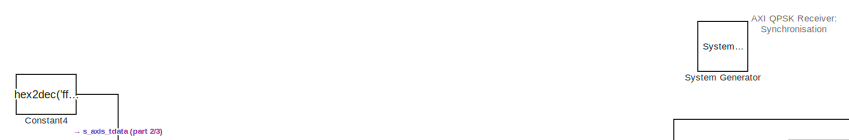
[diagram: root canvas - part 1/3, top left region]
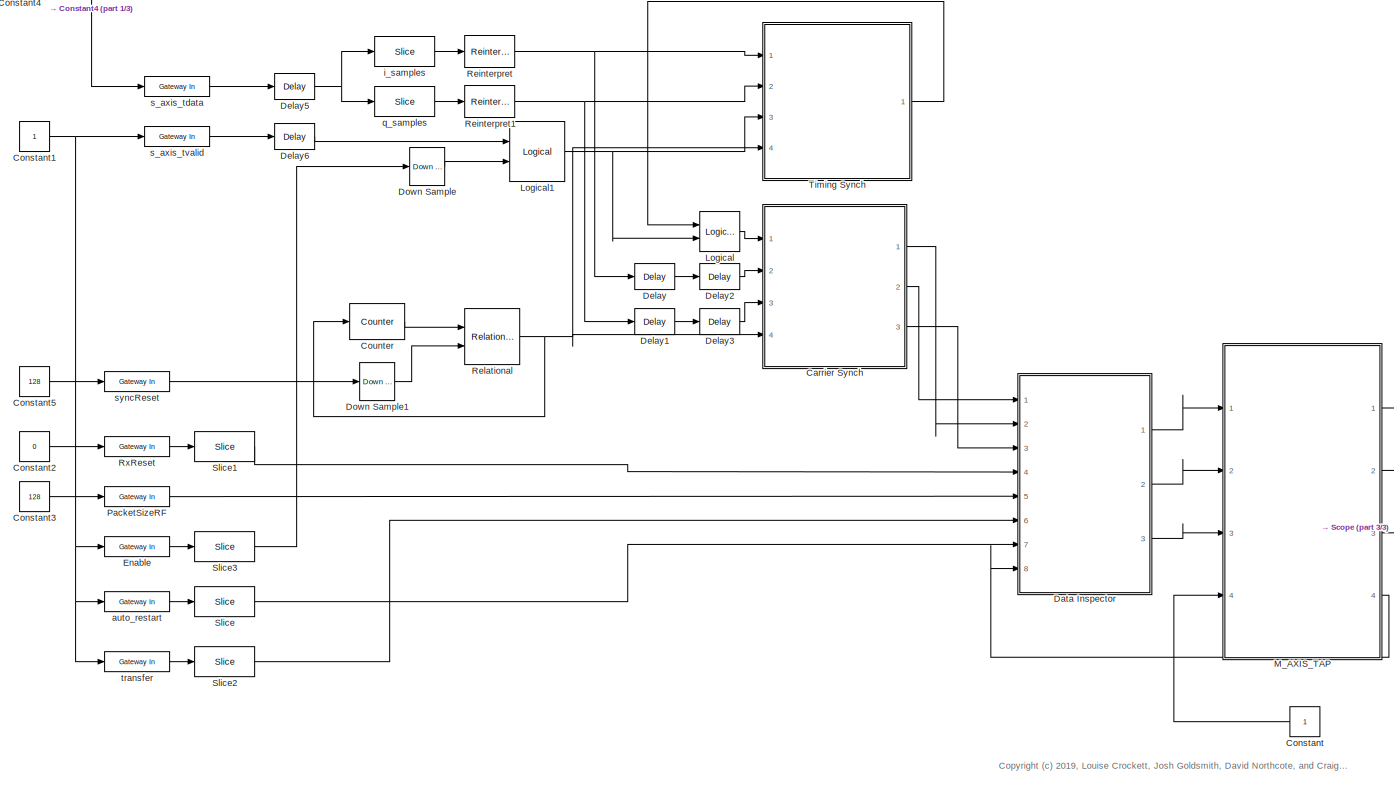
[diagram: root canvas - part 2/3, most of the canvas]
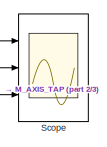
[diagram: root canvas - part 3/3, middle right region]
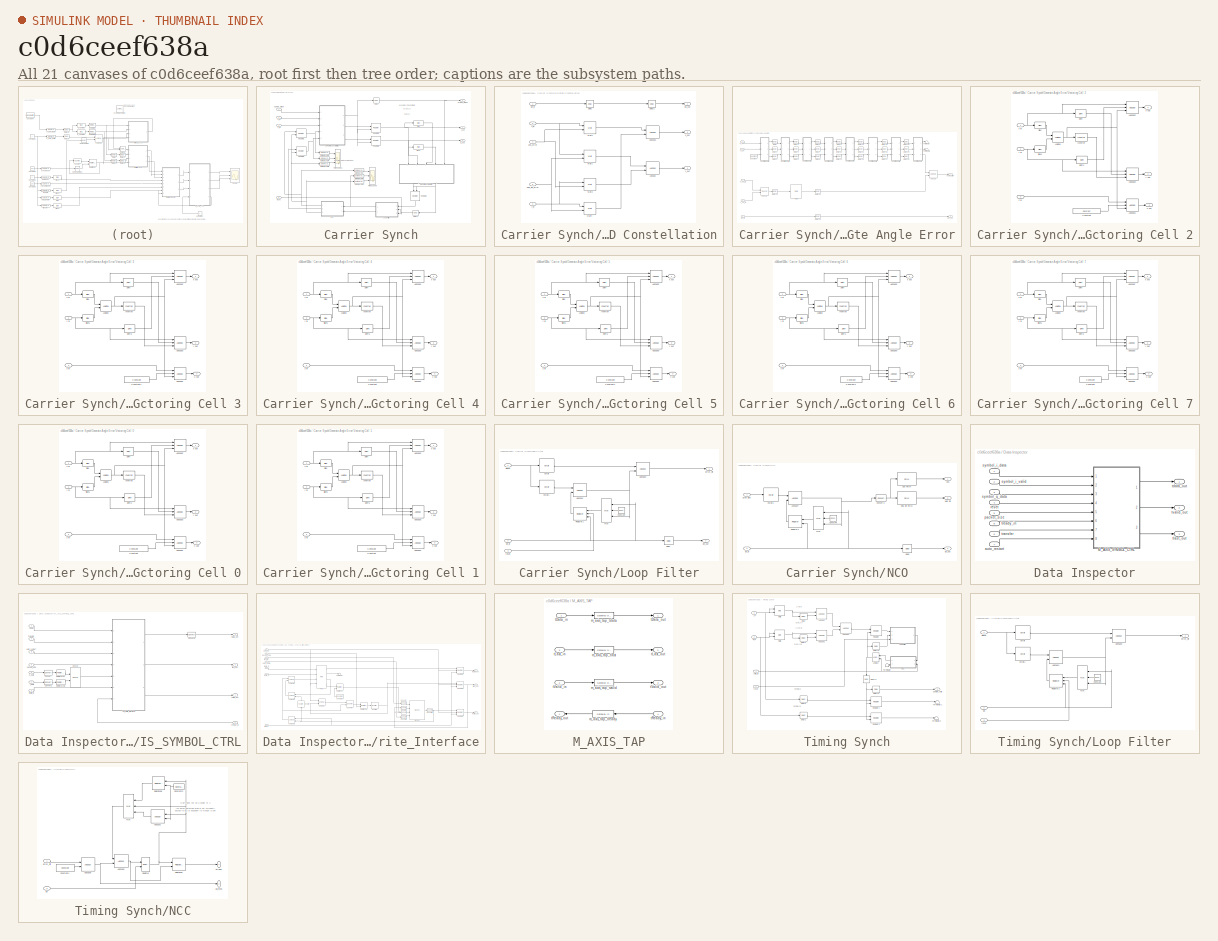
[diagram: thumbnail index - all 21 canvases of the model, root first then tree order]
MODEL slx_c0d6ceef638a
KIND model
CONFIG AbsTol = auto
CONFIG EnableMultiTasking = off
CONFIG FixedStep = auto
CONFIG InitFcn = fs_in = 25.6e6;
CONFIG MaxStep = auto
CONFIG MinStep = auto
CONFIG PreLoadFcn = fs_in = 25.6e6;\n\ndesign_filters_rx;      % run script to generate filter designs.\n\nRb = 1000;   % 1kbit / s\n\nRsym = Rb/2;   % 2 bits per symbol\n\nRsymbol = Rb/2;\n\nOSR = 32;\n\nf_error = 120;\n\nfc = 100e3;
CONFIG RelTol = 1e-3
CONFIG SampleTimeConstraint = Unconstrained
CONFIG Solver = VariableStepAuto
CONFIG SolverName = VariableStepAuto
CONFIG StartTime = 0.0
CONFIG StopTime = 10.0
BLOCK [Reference]  System Generator  REF=xbsIndex_r4/ System Generator
  AttributesFormatString = System\nGenerator
  Ports = []
  SourceBlock = xbsIndex_r4/ System Generator
  SourceType = Xilinx System Generator Block
  Tag = genX
  UserDataPersistent = on
BLOCK [SubSystem] Carrier Synch
  Ports = [4, 3]
  RequestExecContextInheritance = off
BLOCK [SubSystem] Carrier Synch/De-Rotate Constellation
  Ports = [5, 3]
  RequestExecContextInheritance = off
BLOCK [Reference] Carrier Synch/De-Rotate Constellation/AddSub  REF=xbsIndex_r4/AddSub
  Ports = [2, 1]
  SourceBlock = xbsIndex_r4/AddSub
  SourceType = Xilinx Adder/Subtracter Block
BLOCK [Reference] Carrier Synch/De-Rotate Constellation/AddSub1  REF=xbsIndex_r4/AddSub
  Ports = [2, 1]
  SourceBlock = xbsIndex_r4/AddSub
  SourceType = Xilinx Adder/Subtracter Block
BLOCK [Inport] Carrier Synch/De-Rotate Constellation/Cos_error
  Port = 4
BLOCK [Reference] Carrier Synch/De-Rotate Constellation/Delay  REF=xbsIndex_r4/Delay
  Commented = through
  Ports = [1, 1]
  SourceBlock = xbsIndex_r4/Delay
  SourceType = Xilinx Delay Block
BLOCK [Reference] Carrier Synch/De-Rotate Constellation/Delay1  REF=xbsIndex_r4/Delay
  Commented = through
  Ports = [1, 1]
  SourceBlock = xbsIndex_r4/Delay
  SourceType = Xilinx Delay Block
BLOCK [Inport] Carrier Synch/De-Rotate Constellation/En_in
BLOCK [Outport] Carrier Synch/De-Rotate Constellation/En_out
  VectorParamsAs1DForOutWhenUnconnected = off
BLOCK [Reference] Carrier Synch/De-Rotate Constellation/Mult1  REF=xbsIndex_r4/Mult
  Ports = [2, 1]
  SourceBlock = xbsIndex_r4/Mult
  SourceType = Xilinx Multiplier Block
BLOCK [Reference] Carrier Synch/De-Rotate Constellation/Mult2  REF=xbsIndex_r4/Mult
  Ports = [2, 1]
  SourceBlock = xbsIndex_r4/Mult
  SourceType = Xilinx Multiplier Block
BLOCK [Reference] Carrier Synch/De-Rotate Constellation/Mult3  REF=xbsIndex_r4/Mult
  Ports = [2, 1]
  SourceBlock = xbsIndex_r4/Mult
  SourceType = Xilinx Multiplier Block
BLOCK [Reference] Carrier Synch/De-Rotate Constellation/Mult4  REF=xbsIndex_r4/Mult
  Ports = [2, 1]
  SourceBlock = xbsIndex_r4/Mult
  SourceType = Xilinx Multiplier Block
BLOCK [Inport] Carrier Synch/De-Rotate Constellation/Neg_Sin_error
  Port = 5
BLOCK [Inport] Carrier Synch/De-Rotate Constellation/X_in
  Port = 2
BLOCK [Outport] Carrier Synch/De-Rotate Constellation/X_out
  Port = 2
  VectorParamsAs1DForOutWhenUnconnected = off
BLOCK [Inport] Carrier Synch/De-Rotate Constellation/Y_in
  Port = 3
BLOCK [Outport] Carrier Synch/De-Rotate Constellation/Y_out
  Port = 3
  VectorParamsAs1DForOutWhenUnconnected = off
BLOCK [Reference] Carrier Synch/Delay  REF=xbsIndex_r4/Delay
  Ports = [1, 1]
  SourceBlock = xbsIndex_r4/Delay
  SourceType = Xilinx Delay Block
BLOCK [Reference] Carrier Synch/Delay1  REF=xbsIndex_r4/Delay
  Ports = [1, 1]
  SourceBlock = xbsIndex_r4/Delay
  SourceType = Xilinx Delay Block
BLOCK [Reference] Carrier Synch/Gateway Out  REF=xbsIndex_r4/Gateway Out
  Commented = on
  Ports = [1, 1]
  SourceBlock = xbsIndex_r4/Gateway Out
  SourceType = Xilinx Gateway Out Block
BLOCK [Reference] Carrier Synch/Gateway Out1  REF=xbsIndex_r4/Gateway Out
  Commented = on
  Ports = [1, 1]
  SourceBlock = xbsIndex_r4/Gateway Out
  SourceType = Xilinx Gateway Out Block
BLOCK [Reference] Carrier Synch/Gateway Out2  REF=xbsIndex_r4/Gateway Out
  Commented = on
  Ports = [1, 1]
  SourceBlock = xbsIndex_r4/Gateway Out
  SourceType = Xilinx Gateway Out Block
BLOCK [Reference] Carrier Synch/Gateway Out3  REF=xbsIndex_r4/Gateway Out
  Commented = on
  Ports = [1, 1]
  SourceBlock = xbsIndex_r4/Gateway Out
  SourceType = Xilinx Gateway Out Block
BLOCK [Reference] Carrier Synch/Gateway Out4  REF=xbsIndex_r4/Gateway Out
  Commented = on
  Ports = [1, 1]
  SourceBlock = xbsIndex_r4/Gateway Out
  SourceType = Xilinx Gateway Out Block
BLOCK [Reference] Carrier Synch/Gateway Out5  REF=xbsIndex_r4/Gateway Out
  Commented = on
  Ports = [1, 1]
  SourceBlock = xbsIndex_r4/Gateway Out
  SourceType = Xilinx Gateway Out Block
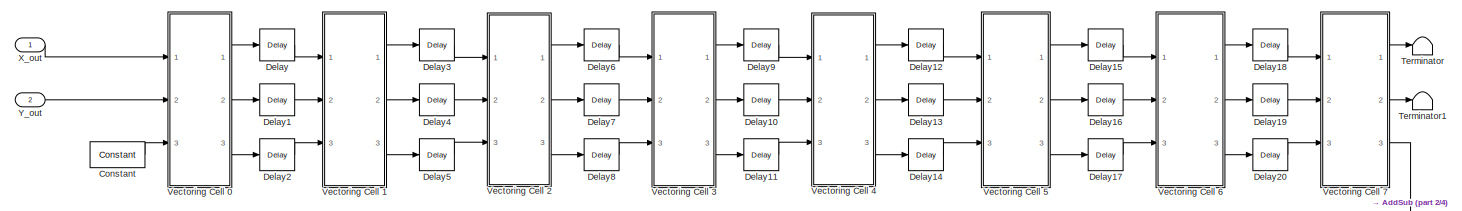
[diagram: Carrier Synch/Generate Angle Error - part 1/4, full width, top band]
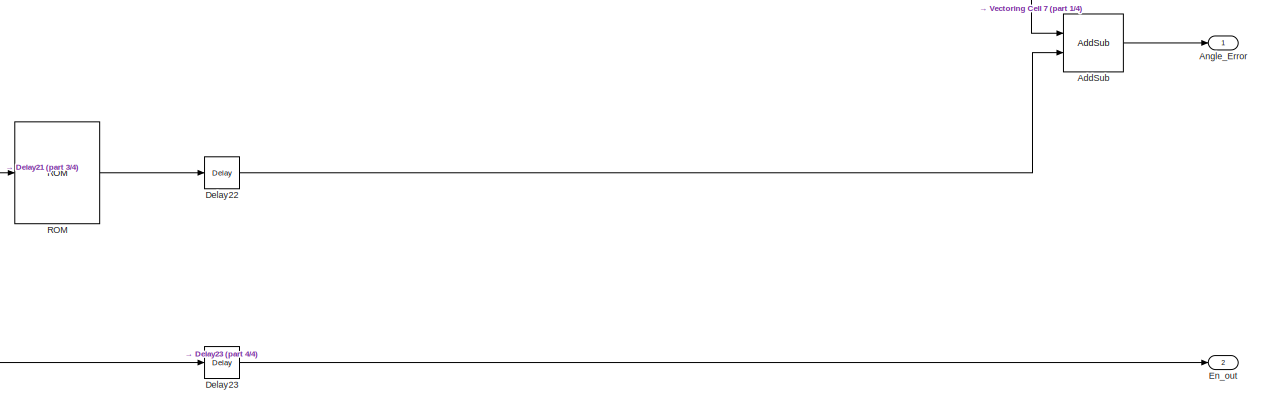
[diagram: Carrier Synch/Generate Angle Error - part 2/4, full width, bottom band]
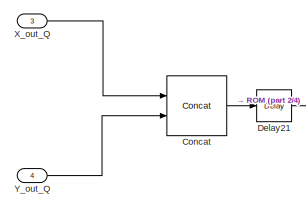
[diagram: Carrier Synch/Generate Angle Error - part 3/4, middle left region]
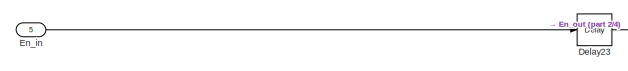
[diagram: Carrier Synch/Generate Angle Error - part 4/4, bottom left region]
BLOCK [SubSystem] Carrier Synch/Generate Angle Error
  NameLocation = left
  Ports = [5, 2]
  RequestExecContextInheritance = off
BLOCK [Reference] Carrier Synch/Generate Angle Error/AddSub  REF=xbsIndex_r4/AddSub
  Ports = [2, 1]
  SourceBlock = xbsIndex_r4/AddSub
  SourceType = Xilinx Adder/Subtracter Block
BLOCK [Outport] Carrier Synch/Generate Angle Error/Angle_Error
  VectorParamsAs1DForOutWhenUnconnected = off
BLOCK [Reference] Carrier Synch/Generate Angle Error/Concat  REF=xbsIndex_r4/Concat
  Ports = [2, 1]
  SourceBlock = xbsIndex_r4/Concat
  SourceType = Xilinx Bus Concatenator Block
BLOCK [Reference] Carrier Synch/Generate Angle Error/Constant  REF=xbsIndex_r4/Constant
  Ports = [0, 1]
  SourceBlock = xbsIndex_r4/Constant
  SourceType = Xilinx Constant Block Block
BLOCK [Reference] Carrier Synch/Generate Angle Error/Delay  REF=xbsIndex_r4/Delay
  Ports = [1, 1]
  SourceBlock = xbsIndex_r4/Delay
  SourceType = Xilinx Delay Block
BLOCK [Reference] Carrier Synch/Generate Angle Error/Delay1  REF=xbsIndex_r4/Delay
  Ports = [1, 1]
  SourceBlock = xbsIndex_r4/Delay
  SourceType = Xilinx Delay Block
BLOCK [Reference] Carrier Synch/Generate Angle Error/Delay10  REF=xbsIndex_r4/Delay
  Ports = [1, 1]
  SourceBlock = xbsIndex_r4/Delay
  SourceType = Xilinx Delay Block
BLOCK [Reference] Carrier Synch/Generate Angle Error/Delay11  REF=xbsIndex_r4/Delay
  Ports = [1, 1]
  SourceBlock = xbsIndex_r4/Delay
  SourceType = Xilinx Delay Block
BLOCK [Reference] Carrier Synch/Generate Angle Error/Delay12  REF=xbsIndex_r4/Delay
  Ports = [1, 1]
  SourceBlock = xbsIndex_r4/Delay
  SourceType = Xilinx Delay Block
BLOCK [Reference] Carrier Synch/Generate Angle Error/Delay13  REF=xbsIndex_r4/Delay
  Ports = [1, 1]
  SourceBlock = xbsIndex_r4/Delay
  SourceType = Xilinx Delay Block
BLOCK [Reference] Carrier Synch/Generate Angle Error/Delay14  REF=xbsIndex_r4/Delay
  Ports = [1, 1]
  SourceBlock = xbsIndex_r4/Delay
  SourceType = Xilinx Delay Block
BLOCK [Reference] Carrier Synch/Generate Angle Error/Delay15  REF=xbsIndex_r4/Delay
  Ports = [1, 1]
  SourceBlock = xbsIndex_r4/Delay
  SourceType = Xilinx Delay Block
BLOCK [Reference] Carrier Synch/Generate Angle Error/Delay16  REF=xbsIndex_r4/Delay
  Ports = [1, 1]
  SourceBlock = xbsIndex_r4/Delay
  SourceType = Xilinx Delay Block
BLOCK [Reference] Carrier Synch/Generate Angle Error/Delay17  REF=xbsIndex_r4/Delay
  Ports = [1, 1]
  SourceBlock = xbsIndex_r4/Delay
  SourceType = Xilinx Delay Block
BLOCK [Reference] Carrier Synch/Generate Angle Error/Delay18  REF=xbsIndex_r4/Delay
  Ports = [1, 1]
  SourceBlock = xbsIndex_r4/Delay
  SourceType = Xilinx Delay Block
BLOCK [Reference] Carrier Synch/Generate Angle Error/Delay19  REF=xbsIndex_r4/Delay
  Ports = [1, 1]
  SourceBlock = xbsIndex_r4/Delay
  SourceType = Xilinx Delay Block
BLOCK [Reference] Carrier Synch/Generate Angle Error/Delay2  REF=xbsIndex_r4/Delay
  Ports = [1, 1]
  SourceBlock = xbsIndex_r4/Delay
  SourceType = Xilinx Delay Block
BLOCK [Reference] Carrier Synch/Generate Angle Error/Delay20  REF=xbsIndex_r4/Delay
  Ports = [1, 1]
  SourceBlock = xbsIndex_r4/Delay
  SourceType = Xilinx Delay Block
BLOCK [Reference] Carrier Synch/Generate Angle Error/Delay21  REF=xbsIndex_r4/Delay
  Ports = [1, 1]
  SourceBlock = xbsIndex_r4/Delay
  SourceType = Xilinx Delay Block
BLOCK [Reference] Carrier Synch/Generate Angle Error/Delay22  REF=xbsIndex_r4/Delay
  Ports = [1, 1]
  SourceBlock = xbsIndex_r4/Delay
  SourceType = Xilinx Delay Block
BLOCK [Reference] Carrier Synch/Generate Angle Error/Delay23  REF=xbsIndex_r4/Delay
  Ports = [1, 1]
  SourceBlock = xbsIndex_r4/Delay
  SourceType = Xilinx Delay Block
BLOCK [Reference] Carrier Synch/Generate Angle Error/Delay3  REF=xbsIndex_r4/Delay
  Ports = [1, 1]
  SourceBlock = xbsIndex_r4/Delay
  SourceType = Xilinx Delay Block
BLOCK [Reference] Carrier Synch/Generate Angle Error/Delay4  REF=xbsIndex_r4/Delay
  Ports = [1, 1]
  SourceBlock = xbsIndex_r4/Delay
  SourceType = Xilinx Delay Block
BLOCK [Reference] Carrier Synch/Generate Angle Error/Delay5  REF=xbsIndex_r4/Delay
  Ports = [1, 1]
  SourceBlock = xbsIndex_r4/Delay
  SourceType = Xilinx Delay Block
BLOCK [Reference] Carrier Synch/Generate Angle Error/Delay6  REF=xbsIndex_r4/Delay
  Ports = [1, 1]
  SourceBlock = xbsIndex_r4/Delay
  SourceType = Xilinx Delay Block
BLOCK [Reference] Carrier Synch/Generate Angle Error/Delay7  REF=xbsIndex_r4/Delay
  Ports = [1, 1]
  SourceBlock = xbsIndex_r4/Delay
  SourceType = Xilinx Delay Block
BLOCK [Reference] Carrier Synch/Generate Angle Error/Delay8  REF=xbsIndex_r4/Delay
  Ports = [1, 1]
  SourceBlock = xbsIndex_r4/Delay
  SourceType = Xilinx Delay Block
BLOCK [Reference] Carrier Synch/Generate Angle Error/Delay9  REF=xbsIndex_r4/Delay
  Ports = [1, 1]
  SourceBlock = xbsIndex_r4/Delay
  SourceType = Xilinx Delay Block
BLOCK [Inport] Carrier Synch/Generate Angle Error/En_in
  Port = 5
BLOCK [Outport] Carrier Synch/Generate Angle Error/En_out
  Port = 2
  VectorParamsAs1DForOutWhenUnconnected = off
BLOCK [Reference] Carrier Synch/Generate Angle Error/ROM  REF=xbsIndex_r4/ROM
  Ports = [1, 1]
  SourceBlock = xbsIndex_r4/ROM
  SourceType = Xilinx Single Port Read-Only Memory Block
BLOCK [Terminator] Carrier Synch/Generate Angle Error/Terminator
BLOCK [Terminator] Carrier Synch/Generate Angle Error/Terminator1
BLOCK [SubSystem] Carrier Synch/Generate Angle Error/Vectoring Cell 0
  Ports = [3, 3]
  RequestExecContextInheritance = off
BLOCK [Reference] Carrier Synch/Generate Angle Error/Vectoring Cell 0/AddSub1  REF=xbsIndex_r4/AddSub
  Ports = [3, 1]
  SourceBlock = xbsIndex_r4/AddSub
  SourceType = Xilinx Adder/Subtracter Block
BLOCK [Reference] Carrier Synch/Generate Angle Error/Vectoring Cell 0/AddSub2  REF=xbsIndex_r4/AddSub
  Ports = [3, 1]
  SourceBlock = xbsIndex_r4/AddSub
  SourceType = Xilinx Adder/Subtracter Block
BLOCK [Reference] Carrier Synch/Generate Angle Error/Vectoring Cell 0/AddSub3  REF=xbsIndex_r4/AddSub
  Ports = [3, 1]
  SourceBlock = xbsIndex_r4/AddSub
  SourceType = Xilinx Adder/Subtracter Block
BLOCK [Reference] Carrier Synch/Generate Angle Error/Vectoring Cell 0/Constant  REF=xbsIndex_r4/Constant
  Ports = [0, 1]
  SourceBlock = xbsIndex_r4/Constant
  SourceType = Xilinx Constant Block Block
BLOCK [Reference] Carrier Synch/Generate Angle Error/Vectoring Cell 0/Inverter  REF=xbsIndex_r4/Inverter
  Ports = [1, 1]
  SourceBlock = xbsIndex_r4/Inverter
  SourceType = Xilinx Inverter Block
BLOCK [Reference] Carrier Synch/Generate Angle Error/Vectoring Cell 0/Logical  REF=xbsIndex_r4/Logical
  Ports = [2, 1]
  SourceBlock = xbsIndex_r4/Logical
  SourceType = Xilinx Logical Block Block
BLOCK [Reference] Carrier Synch/Generate Angle Error/Vectoring Cell 0/Shift  REF=xbsIndex_r4/Shift
  Ports = [1, 1]
  SourceBlock = xbsIndex_r4/Shift
  SourceType = Xilinx Binary Shift Operator Block
BLOCK [Reference] Carrier Synch/Generate Angle Error/Vectoring Cell 0/Shift1  REF=xbsIndex_r4/Shift
  Ports = [1, 1]
  SourceBlock = xbsIndex_r4/Shift
  SourceType = Xilinx Binary Shift Operator Block
BLOCK [Reference] Carrier Synch/Generate Angle Error/Vectoring Cell 0/Slice  REF=xbsIndex_r4/Slice
  Ports = [1, 1]
  SourceBlock = xbsIndex_r4/Slice
  SourceType = Xilinx Bit Slice Extractor Block
BLOCK [Reference] Carrier Synch/Generate Angle Error/Vectoring Cell 0/Slice1  REF=xbsIndex_r4/Slice
  Ports = [1, 1]
  SourceBlock = xbsIndex_r4/Slice
  SourceType = Xilinx Bit Slice Extractor Block
BLOCK [Inport] Carrier Synch/Generate Angle Error/Vectoring Cell 0/x in
BLOCK [Outport] Carrier Synch/Generate Angle Error/Vectoring Cell 0/x out
  VectorParamsAs1DForOutWhenUnconnected = off
BLOCK [Inport] Carrier Synch/Generate Angle Error/Vectoring Cell 0/y in
  Port = 2
BLOCK [Outport] Carrier Synch/Generate Angle Error/Vectoring Cell 0/y out
  Port = 2
  VectorParamsAs1DForOutWhenUnconnected = off
BLOCK [Inport] Carrier Synch/Generate Angle Error/Vectoring Cell 0/z in
  Port = 3
BLOCK [Outport] Carrier Synch/Generate Angle Error/Vectoring Cell 0/z out
  Port = 3
  VectorParamsAs1DForOutWhenUnconnected = off
BLOCK [SubSystem] Carrier Synch/Generate Angle Error/Vectoring Cell 1
  Ports = [3, 3]
  RequestExecContextInheritance = off
BLOCK [Reference] Carrier Synch/Generate Angle Error/Vectoring Cell 1/AddSub1  REF=xbsIndex_r4/AddSub
  Ports = [3, 1]
  SourceBlock = xbsIndex_r4/AddSub
  SourceType = Xilinx Adder/Subtracter Block
BLOCK [Reference] Carrier Synch/Generate Angle Error/Vectoring Cell 1/AddSub2  REF=xbsIndex_r4/AddSub
  Ports = [3, 1]
  SourceBlock = xbsIndex_r4/AddSub
  SourceType = Xilinx Adder/Subtracter Block
BLOCK [Reference] Carrier Synch/Generate Angle Error/Vectoring Cell 1/AddSub3  REF=xbsIndex_r4/AddSub
  Ports = [3, 1]
  SourceBlock = xbsIndex_r4/AddSub
  SourceType = Xilinx Adder/Subtracter Block
BLOCK [Reference] Carrier Synch/Generate Angle Error/Vectoring Cell 1/Constant  REF=xbsIndex_r4/Constant
  Ports = [0, 1]
  SourceBlock = xbsIndex_r4/Constant
  SourceType = Xilinx Constant Block Block
BLOCK [Reference] Carrier Synch/Generate Angle Error/Vectoring Cell 1/Inverter  REF=xbsIndex_r4/Inverter
  Ports = [1, 1]
  SourceBlock = xbsIndex_r4/Inverter
  SourceType = Xilinx Inverter Block
BLOCK [Reference] Carrier Synch/Generate Angle Error/Vectoring Cell 1/Logical  REF=xbsIndex_r4/Logical
  Ports = [2, 1]
  SourceBlock = xbsIndex_r4/Logical
  SourceType = Xilinx Logical Block Block
BLOCK [Reference] Carrier Synch/Generate Angle Error/Vectoring Cell 1/Shift  REF=xbsIndex_r4/Shift
  Ports = [1, 1]
  SourceBlock = xbsIndex_r4/Shift
  SourceType = Xilinx Binary Shift Operator Block
BLOCK [Reference] Carrier Synch/Generate Angle Error/Vectoring Cell 1/Shift1  REF=xbsIndex_r4/Shift
  Ports = [1, 1]
  SourceBlock = xbsIndex_r4/Shift
  SourceType = Xilinx Binary Shift Operator Block
BLOCK [Reference] Carrier Synch/Generate Angle Error/Vectoring Cell 1/Slice  REF=xbsIndex_r4/Slice
  Ports = [1, 1]
  SourceBlock = xbsIndex_r4/Slice
  SourceType = Xilinx Bit Slice Extractor Block
BLOCK [Reference] Carrier Synch/Generate Angle Error/Vectoring Cell 1/Slice1  REF=xbsIndex_r4/Slice
  Ports = [1, 1]
  SourceBlock = xbsIndex_r4/Slice
  SourceType = Xilinx Bit Slice Extractor Block
BLOCK [Inport] Carrier Synch/Generate Angle Error/Vectoring Cell 1/x in
BLOCK [Outport] Carrier Synch/Generate Angle Error/Vectoring Cell 1/x out
  VectorParamsAs1DForOutWhenUnconnected = off
BLOCK [Inport] Carrier Synch/Generate Angle Error/Vectoring Cell 1/y in
  Port = 2
BLOCK [Outport] Carrier Synch/Generate Angle Error/Vectoring Cell 1/y out
  Port = 2
  VectorParamsAs1DForOutWhenUnconnected = off
BLOCK [Inport] Carrier Synch/Generate Angle Error/Vectoring Cell 1/z in
  Port = 3
BLOCK [Outport] Carrier Synch/Generate Angle Error/Vectoring Cell 1/z out
  Port = 3
  VectorParamsAs1DForOutWhenUnconnected = off
BLOCK [SubSystem] Carrier Synch/Generate Angle Error/Vectoring Cell 2
  Ports = [3, 3]
  RequestExecContextInheritance = off
BLOCK [Reference] Carrier Synch/Generate Angle Error/Vectoring Cell 2/AddSub1  REF=xbsIndex_r4/AddSub
  Ports = [3, 1]
  SourceBlock = xbsIndex_r4/AddSub
  SourceType = Xilinx Adder/Subtracter Block
BLOCK [Reference] Carrier Synch/Generate Angle Error/Vectoring Cell 2/AddSub2  REF=xbsIndex_r4/AddSub
  Ports = [3, 1]
  SourceBlock = xbsIndex_r4/AddSub
  SourceType = Xilinx Adder/Subtracter Block
BLOCK [Reference] Carrier Synch/Generate Angle Error/Vectoring Cell 2/AddSub3  REF=xbsIndex_r4/AddSub
  Ports = [3, 1]
  SourceBlock = xbsIndex_r4/AddSub
  SourceType = Xilinx Adder/Subtracter Block
BLOCK [Reference] Carrier Synch/Generate Angle Error/Vectoring Cell 2/Constant  REF=xbsIndex_r4/Constant
  Ports = [0, 1]
  SourceBlock = xbsIndex_r4/Constant
  SourceType = Xilinx Constant Block Block
BLOCK [Reference] Carrier Synch/Generate Angle Error/Vectoring Cell 2/Inverter  REF=xbsIndex_r4/Inverter
  Ports = [1, 1]
  SourceBlock = xbsIndex_r4/Inverter
  SourceType = Xilinx Inverter Block
BLOCK [Reference] Carrier Synch/Generate Angle Error/Vectoring Cell 2/Logical  REF=xbsIndex_r4/Logical
  Ports = [2, 1]
  SourceBlock = xbsIndex_r4/Logical
  SourceType = Xilinx Logical Block Block
BLOCK [Reference] Carrier Synch/Generate Angle Error/Vectoring Cell 2/Shift  REF=xbsIndex_r4/Shift
  Ports = [1, 1]
  SourceBlock = xbsIndex_r4/Shift
  SourceType = Xilinx Binary Shift Operator Block
BLOCK [Reference] Carrier Synch/Generate Angle Error/Vectoring Cell 2/Shift1  REF=xbsIndex_r4/Shift
  Ports = [1, 1]
  SourceBlock = xbsIndex_r4/Shift
  SourceType = Xilinx Binary Shift Operator Block
BLOCK [Reference] Carrier Synch/Generate Angle Error/Vectoring Cell 2/Slice  REF=xbsIndex_r4/Slice
  Ports = [1, 1]
  SourceBlock = xbsIndex_r4/Slice
  SourceType = Xilinx Bit Slice Extractor Block
BLOCK [Reference] Carrier Synch/Generate Angle Error/Vectoring Cell 2/Slice1  REF=xbsIndex_r4/Slice
  Ports = [1, 1]
  SourceBlock = xbsIndex_r4/Slice
  SourceType = Xilinx Bit Slice Extractor Block
BLOCK [Inport] Carrier Synch/Generate Angle Error/Vectoring Cell 2/x in
BLOCK [Outport] Carrier Synch/Generate Angle Error/Vectoring Cell 2/x out
  VectorParamsAs1DForOutWhenUnconnected = off
BLOCK [Inport] Carrier Synch/Generate Angle Error/Vectoring Cell 2/y in
  Port = 2
BLOCK [Outport] Carrier Synch/Generate Angle Error/Vectoring Cell 2/y out
  Port = 2
  VectorParamsAs1DForOutWhenUnconnected = off
BLOCK [Inport] Carrier Synch/Generate Angle Error/Vectoring Cell 2/z in
  Port = 3
BLOCK [Outport] Carrier Synch/Generate Angle Error/Vectoring Cell 2/z out
  Port = 3
  VectorParamsAs1DForOutWhenUnconnected = off
BLOCK [SubSystem] Carrier Synch/Generate Angle Error/Vectoring Cell 3
  Ports = [3, 3]
  RequestExecContextInheritance = off
BLOCK [Reference] Carrier Synch/Generate Angle Error/Vectoring Cell 3/AddSub1  REF=xbsIndex_r4/AddSub
  Ports = [3, 1]
  SourceBlock = xbsIndex_r4/AddSub
  SourceType = Xilinx Adder/Subtracter Block
BLOCK [Reference] Carrier Synch/Generate Angle Error/Vectoring Cell 3/AddSub2  REF=xbsIndex_r4/AddSub
  Ports = [3, 1]
  SourceBlock = xbsIndex_r4/AddSub
  SourceType = Xilinx Adder/Subtracter Block
BLOCK [Reference] Carrier Synch/Generate Angle Error/Vectoring Cell 3/AddSub3  REF=xbsIndex_r4/AddSub
  Ports = [3, 1]
  SourceBlock = xbsIndex_r4/AddSub
  SourceType = Xilinx Adder/Subtracter Block
BLOCK [Reference] Carrier Synch/Generate Angle Error/Vectoring Cell 3/Constant1  REF=xbsIndex_r4/Constant
  Ports = [0, 1]
  SourceBlock = xbsIndex_r4/Constant
  SourceType = Xilinx Constant Block Block
BLOCK [Reference] Carrier Synch/Generate Angle Error/Vectoring Cell 3/Inverter  REF=xbsIndex_r4/Inverter
  Ports = [1, 1]
  SourceBlock = xbsIndex_r4/Inverter
  SourceType = Xilinx Inverter Block
BLOCK [Reference] Carrier Synch/Generate Angle Error/Vectoring Cell 3/Logical  REF=xbsIndex_r4/Logical
  Ports = [2, 1]
  SourceBlock = xbsIndex_r4/Logical
  SourceType = Xilinx Logical Block Block
BLOCK [Reference] Carrier Synch/Generate Angle Error/Vectoring Cell 3/Shift  REF=xbsIndex_r4/Shift
  Ports = [1, 1]
  SourceBlock = xbsIndex_r4/Shift
  SourceType = Xilinx Binary Shift Operator Block
BLOCK [Reference] Carrier Synch/Generate Angle Error/Vectoring Cell 3/Shift1  REF=xbsIndex_r4/Shift
  Ports = [1, 1]
  SourceBlock = xbsIndex_r4/Shift
  SourceType = Xilinx Binary Shift Operator Block
BLOCK [Reference] Carrier Synch/Generate Angle Error/Vectoring Cell 3/Slice  REF=xbsIndex_r4/Slice
  Ports = [1, 1]
  SourceBlock = xbsIndex_r4/Slice
  SourceType = Xilinx Bit Slice Extractor Block
BLOCK [Reference] Carrier Synch/Generate Angle Error/Vectoring Cell 3/Slice1  REF=xbsIndex_r4/Slice
  Ports = [1, 1]
  SourceBlock = xbsIndex_r4/Slice
  SourceType = Xilinx Bit Slice Extractor Block
BLOCK [Inport] Carrier Synch/Generate Angle Error/Vectoring Cell 3/x in
BLOCK [Outport] Carrier Synch/Generate Angle Error/Vectoring Cell 3/x out
  VectorParamsAs1DForOutWhenUnconnected = off
BLOCK [Inport] Carrier Synch/Generate Angle Error/Vectoring Cell 3/y in
  Port = 2
BLOCK [Outport] Carrier Synch/Generate Angle Error/Vectoring Cell 3/y out
  Port = 2
  VectorParamsAs1DForOutWhenUnconnected = off
BLOCK [Inport] Carrier Synch/Generate Angle Error/Vectoring Cell 3/z in
  Port = 3
BLOCK [Outport] Carrier Synch/Generate Angle Error/Vectoring Cell 3/z out
  Port = 3
  VectorParamsAs1DForOutWhenUnconnected = off
BLOCK [SubSystem] Carrier Synch/Generate Angle Error/Vectoring Cell 4
  Ports = [3, 3]
  RequestExecContextInheritance = off
BLOCK [Reference] Carrier Synch/Generate Angle Error/Vectoring Cell 4/AddSub1  REF=xbsIndex_r4/AddSub
  Ports = [3, 1]
  SourceBlock = xbsIndex_r4/AddSub
  SourceType = Xilinx Adder/Subtracter Block
BLOCK [Reference] Carrier Synch/Generate Angle Error/Vectoring Cell 4/AddSub2  REF=xbsIndex_r4/AddSub
  Ports = [3, 1]
  SourceBlock = xbsIndex_r4/AddSub
  SourceType = Xilinx Adder/Subtracter Block
BLOCK [Reference] Carrier Synch/Generate Angle Error/Vectoring Cell 4/AddSub3  REF=xbsIndex_r4/AddSub
  Ports = [3, 1]
  SourceBlock = xbsIndex_r4/AddSub
  SourceType = Xilinx Adder/Subtracter Block
BLOCK [Reference] Carrier Synch/Generate Angle Error/Vectoring Cell 4/Constant  REF=xbsIndex_r4/Constant
  Ports = [0, 1]
  SourceBlock = xbsIndex_r4/Constant
  SourceType = Xilinx Constant Block Block
BLOCK [Reference] Carrier Synch/Generate Angle Error/Vectoring Cell 4/Inverter  REF=xbsIndex_r4/Inverter
  Ports = [1, 1]
  SourceBlock = xbsIndex_r4/Inverter
  SourceType = Xilinx Inverter Block
BLOCK [Reference] Carrier Synch/Generate Angle Error/Vectoring Cell 4/Logical  REF=xbsIndex_r4/Logical
  Ports = [2, 1]
  SourceBlock = xbsIndex_r4/Logical
  SourceType = Xilinx Logical Block Block
BLOCK [Reference] Carrier Synch/Generate Angle Error/Vectoring Cell 4/Shift  REF=xbsIndex_r4/Shift
  Ports = [1, 1]
  SourceBlock = xbsIndex_r4/Shift
  SourceType = Xilinx Binary Shift Operator Block
BLOCK [Reference] Carrier Synch/Generate Angle Error/Vectoring Cell 4/Shift1  REF=xbsIndex_r4/Shift
  Ports = [1, 1]
  SourceBlock = xbsIndex_r4/Shift
  SourceType = Xilinx Binary Shift Operator Block
BLOCK [Reference] Carrier Synch/Generate Angle Error/Vectoring Cell 4/Slice  REF=xbsIndex_r4/Slice
  Ports = [1, 1]
  SourceBlock = xbsIndex_r4/Slice
  SourceType = Xilinx Bit Slice Extractor Block
BLOCK [Reference] Carrier Synch/Generate Angle Error/Vectoring Cell 4/Slice1  REF=xbsIndex_r4/Slice
  Ports = [1, 1]
  SourceBlock = xbsIndex_r4/Slice
  SourceType = Xilinx Bit Slice Extractor Block
BLOCK [Inport] Carrier Synch/Generate Angle Error/Vectoring Cell 4/x in
BLOCK [Outport] Carrier Synch/Generate Angle Error/Vectoring Cell 4/x out
  VectorParamsAs1DForOutWhenUnconnected = off
BLOCK [Inport] Carrier Synch/Generate Angle Error/Vectoring Cell 4/y in
  Port = 2
BLOCK [Outport] Carrier Synch/Generate Angle Error/Vectoring Cell 4/y out
  Port = 2
  VectorParamsAs1DForOutWhenUnconnected = off
BLOCK [Inport] Carrier Synch/Generate Angle Error/Vectoring Cell 4/z in
  Port = 3
BLOCK [Outport] Carrier Synch/Generate Angle Error/Vectoring Cell 4/z out
  Port = 3
  VectorParamsAs1DForOutWhenUnconnected = off
BLOCK [SubSystem] Carrier Synch/Generate Angle Error/Vectoring Cell 5
  Ports = [3, 3]
  RequestExecContextInheritance = off
BLOCK [Reference] Carrier Synch/Generate Angle Error/Vectoring Cell 5/AddSub1  REF=xbsIndex_r4/AddSub
  Ports = [3, 1]
  SourceBlock = xbsIndex_r4/AddSub
  SourceType = Xilinx Adder/Subtracter Block
BLOCK [Reference] Carrier Synch/Generate Angle Error/Vectoring Cell 5/AddSub2  REF=xbsIndex_r4/AddSub
  Ports = [3, 1]
  SourceBlock = xbsIndex_r4/AddSub
  SourceType = Xilinx Adder/Subtracter Block
BLOCK [Reference] Carrier Synch/Generate Angle Error/Vectoring Cell 5/AddSub3  REF=xbsIndex_r4/AddSub
  Ports = [3, 1]
  SourceBlock = xbsIndex_r4/AddSub
  SourceType = Xilinx Adder/Subtracter Block
BLOCK [Reference] Carrier Synch/Generate Angle Error/Vectoring Cell 5/Constant1  REF=xbsIndex_r4/Constant
  Ports = [0, 1]
  SourceBlock = xbsIndex_r4/Constant
  SourceType = Xilinx Constant Block Block
BLOCK [Reference] Carrier Synch/Generate Angle Error/Vectoring Cell 5/Inverter  REF=xbsIndex_r4/Inverter
  Ports = [1, 1]
  SourceBlock = xbsIndex_r4/Inverter
  SourceType = Xilinx Inverter Block
BLOCK [Reference] Carrier Synch/Generate Angle Error/Vectoring Cell 5/Logical  REF=xbsIndex_r4/Logical
  Ports = [2, 1]
  SourceBlock = xbsIndex_r4/Logical
  SourceType = Xilinx Logical Block Block
BLOCK [Reference] Carrier Synch/Generate Angle Error/Vectoring Cell 5/Shift  REF=xbsIndex_r4/Shift
  Ports = [1, 1]
  SourceBlock = xbsIndex_r4/Shift
  SourceType = Xilinx Binary Shift Operator Block
BLOCK [Reference] Carrier Synch/Generate Angle Error/Vectoring Cell 5/Shift1  REF=xbsIndex_r4/Shift
  Ports = [1, 1]
  SourceBlock = xbsIndex_r4/Shift
  SourceType = Xilinx Binary Shift Operator Block
BLOCK [Reference] Carrier Synch/Generate Angle Error/Vectoring Cell 5/Slice  REF=xbsIndex_r4/Slice
  Ports = [1, 1]
  SourceBlock = xbsIndex_r4/Slice
  SourceType = Xilinx Bit Slice Extractor Block
BLOCK [Reference] Carrier Synch/Generate Angle Error/Vectoring Cell 5/Slice1  REF=xbsIndex_r4/Slice
  Ports = [1, 1]
  SourceBlock = xbsIndex_r4/Slice
  SourceType = Xilinx Bit Slice Extractor Block
BLOCK [Inport] Carrier Synch/Generate Angle Error/Vectoring Cell 5/x in
BLOCK [Outport] Carrier Synch/Generate Angle Error/Vectoring Cell 5/x out
  VectorParamsAs1DForOutWhenUnconnected = off
BLOCK [Inport] Carrier Synch/Generate Angle Error/Vectoring Cell 5/y in
  Port = 2
BLOCK [Outport] Carrier Synch/Generate Angle Error/Vectoring Cell 5/y out
  Port = 2
  VectorParamsAs1DForOutWhenUnconnected = off
BLOCK [Inport] Carrier Synch/Generate Angle Error/Vectoring Cell 5/z in
  Port = 3
BLOCK [Outport] Carrier Synch/Generate Angle Error/Vectoring Cell 5/z out
  Port = 3
  VectorParamsAs1DForOutWhenUnconnected = off
BLOCK [SubSystem] Carrier Synch/Generate Angle Error/Vectoring Cell 6
  Ports = [3, 3]
  RequestExecContextInheritance = off
BLOCK [Reference] Carrier Synch/Generate Angle Error/Vectoring Cell 6/AddSub1  REF=xbsIndex_r4/AddSub
  Ports = [3, 1]
  SourceBlock = xbsIndex_r4/AddSub
  SourceType = Xilinx Adder/Subtracter Block
BLOCK [Reference] Carrier Synch/Generate Angle Error/Vectoring Cell 6/AddSub2  REF=xbsIndex_r4/AddSub
  Ports = [3, 1]
  SourceBlock = xbsIndex_r4/AddSub
  SourceType = Xilinx Adder/Subtracter Block
BLOCK [Reference] Carrier Synch/Generate Angle Error/Vectoring Cell 6/AddSub3  REF=xbsIndex_r4/AddSub
  Ports = [3, 1]
  SourceBlock = xbsIndex_r4/AddSub
  SourceType = Xilinx Adder/Subtracter Block
BLOCK [Reference] Carrier Synch/Generate Angle Error/Vectoring Cell 6/Constant1  REF=xbsIndex_r4/Constant
  Ports = [0, 1]
  SourceBlock = xbsIndex_r4/Constant
  SourceType = Xilinx Constant Block Block
BLOCK [Reference] Carrier Synch/Generate Angle Error/Vectoring Cell 6/Inverter  REF=xbsIndex_r4/Inverter
  Ports = [1, 1]
  SourceBlock = xbsIndex_r4/Inverter
  SourceType = Xilinx Inverter Block
BLOCK [Reference] Carrier Synch/Generate Angle Error/Vectoring Cell 6/Logical  REF=xbsIndex_r4/Logical
  Ports = [2, 1]
  SourceBlock = xbsIndex_r4/Logical
  SourceType = Xilinx Logical Block Block
BLOCK [Reference] Carrier Synch/Generate Angle Error/Vectoring Cell 6/Shift  REF=xbsIndex_r4/Shift
  Ports = [1, 1]
  SourceBlock = xbsIndex_r4/Shift
  SourceType = Xilinx Binary Shift Operator Block
BLOCK [Reference] Carrier Synch/Generate Angle Error/Vectoring Cell 6/Shift1  REF=xbsIndex_r4/Shift
  Ports = [1, 1]
  SourceBlock = xbsIndex_r4/Shift
  SourceType = Xilinx Binary Shift Operator Block
BLOCK [Reference] Carrier Synch/Generate Angle Error/Vectoring Cell 6/Slice  REF=xbsIndex_r4/Slice
  Ports = [1, 1]
  SourceBlock = xbsIndex_r4/Slice
  SourceType = Xilinx Bit Slice Extractor Block
BLOCK [Reference] Carrier Synch/Generate Angle Error/Vectoring Cell 6/Slice1  REF=xbsIndex_r4/Slice
  Ports = [1, 1]
  SourceBlock = xbsIndex_r4/Slice
  SourceType = Xilinx Bit Slice Extractor Block
BLOCK [Inport] Carrier Synch/Generate Angle Error/Vectoring Cell 6/x in
BLOCK [Outport] Carrier Synch/Generate Angle Error/Vectoring Cell 6/x out
  VectorParamsAs1DForOutWhenUnconnected = off
BLOCK [Inport] Carrier Synch/Generate Angle Error/Vectoring Cell 6/y in
  Port = 2
BLOCK [Outport] Carrier Synch/Generate Angle Error/Vectoring Cell 6/y out
  Port = 2
  VectorParamsAs1DForOutWhenUnconnected = off
BLOCK [Inport] Carrier Synch/Generate Angle Error/Vectoring Cell 6/z in
  Port = 3
BLOCK [Outport] Carrier Synch/Generate Angle Error/Vectoring Cell 6/z out
  Port = 3
  VectorParamsAs1DForOutWhenUnconnected = off
BLOCK [SubSystem] Carrier Synch/Generate Angle Error/Vectoring Cell 7
  Ports = [3, 3]
  RequestExecContextInheritance = off
BLOCK [Reference] Carrier Synch/Generate Angle Error/Vectoring Cell 7/AddSub1  REF=xbsIndex_r4/AddSub
  Ports = [3, 1]
  SourceBlock = xbsIndex_r4/AddSub
  SourceType = Xilinx Adder/Subtracter Block
BLOCK [Reference] Carrier Synch/Generate Angle Error/Vectoring Cell 7/AddSub2  REF=xbsIndex_r4/AddSub
  Ports = [3, 1]
  SourceBlock = xbsIndex_r4/AddSub
  SourceType = Xilinx Adder/Subtracter Block
BLOCK [Reference] Carrier Synch/Generate Angle Error/Vectoring Cell 7/AddSub3  REF=xbsIndex_r4/AddSub
  Ports = [3, 1]
  SourceBlock = xbsIndex_r4/AddSub
  SourceType = Xilinx Adder/Subtracter Block
BLOCK [Reference] Carrier Synch/Generate Angle Error/Vectoring Cell 7/Constant  REF=xbsIndex_r4/Constant
  Ports = [0, 1]
  SourceBlock = xbsIndex_r4/Constant
  SourceType = Xilinx Constant Block Block
BLOCK [Reference] Carrier Synch/Generate Angle Error/Vectoring Cell 7/Inverter  REF=xbsIndex_r4/Inverter
  Ports = [1, 1]
  SourceBlock = xbsIndex_r4/Inverter
  SourceType = Xilinx Inverter Block
BLOCK [Reference] Carrier Synch/Generate Angle Error/Vectoring Cell 7/Logical  REF=xbsIndex_r4/Logical
  Ports = [2, 1]
  SourceBlock = xbsIndex_r4/Logical
  SourceType = Xilinx Logical Block Block
BLOCK [Reference] Carrier Synch/Generate Angle Error/Vectoring Cell 7/Shift  REF=xbsIndex_r4/Shift
  Ports = [1, 1]
  SourceBlock = xbsIndex_r4/Shift
  SourceType = Xilinx Binary Shift Operator Block
BLOCK [Reference] Carrier Synch/Generate Angle Error/Vectoring Cell 7/Shift1  REF=xbsIndex_r4/Shift
  Ports = [1, 1]
  SourceBlock = xbsIndex_r4/Shift
  SourceType = Xilinx Binary Shift Operator Block
BLOCK [Reference] Carrier Synch/Generate Angle Error/Vectoring Cell 7/Slice  REF=xbsIndex_r4/Slice
  Ports = [1, 1]
  SourceBlock = xbsIndex_r4/Slice
  SourceType = Xilinx Bit Slice Extractor Block
BLOCK [Reference] Carrier Synch/Generate Angle Error/Vectoring Cell 7/Slice1  REF=xbsIndex_r4/Slice
  Ports = [1, 1]
  SourceBlock = xbsIndex_r4/Slice
  SourceType = Xilinx Bit Slice Extractor Block
BLOCK [Inport] Carrier Synch/Generate Angle Error/Vectoring Cell 7/x in
BLOCK [Outport] Carrier Synch/Generate Angle Error/Vectoring Cell 7/x out
  VectorParamsAs1DForOutWhenUnconnected = off
BLOCK [Inport] Carrier Synch/Generate Angle Error/Vectoring Cell 7/y in
  Port = 2
BLOCK [Outport] Carrier Synch/Generate Angle Error/Vectoring Cell 7/y out
  Port = 2
  VectorParamsAs1DForOutWhenUnconnected = off
BLOCK [Inport] Carrier Synch/Generate Angle Error/Vectoring Cell 7/z in
  Port = 3
BLOCK [Outport] Carrier Synch/Generate Angle Error/Vectoring Cell 7/z out
  Port = 3
  VectorParamsAs1DForOutWhenUnconnected = off
BLOCK [Inport] Carrier Synch/Generate Angle Error/X_out
BLOCK [Inport] Carrier Synch/Generate Angle Error/X_out_Q
  Port = 3
BLOCK [Inport] Carrier Synch/Generate Angle Error/Y_out
  Port = 2
BLOCK [Inport] Carrier Synch/Generate Angle Error/Y_out_Q
  Port = 4
BLOCK [Outport] Carrier Synch/I_out
  Port = 2
  VectorParamsAs1DForOutWhenUnconnected = off
BLOCK [SubSystem] Carrier Synch/Loop Filter
  Ports = [3, 2]
  RequestExecContextInheritance = off
BLOCK [Reference] Carrier Synch/Loop Filter/AddSub3  REF=xbsIndex_r4/AddSub
  Ports = [2, 1]
  SourceBlock = xbsIndex_r4/AddSub
  SourceType = Xilinx Adder/Subtracter Block
BLOCK [Reference] Carrier Synch/Loop Filter/AddSub4  REF=xbsIndex_r4/AddSub
  Ports = [2, 1]
  SourceBlock = xbsIndex_r4/AddSub
  SourceType = Xilinx Adder/Subtracter Block
BLOCK [Reference] Carrier Synch/Loop Filter/CMult  REF=xbsIndex_r4/CMult
  Ports = [1, 1]
  SourceBlock = xbsIndex_r4/CMult
  SourceType = Xilinx Constant Multiplier Block
BLOCK [Reference] Carrier Synch/Loop Filter/CMult1  REF=xbsIndex_r4/CMult
  Ports = [1, 1]
  SourceBlock = xbsIndex_r4/CMult
  SourceType = Xilinx Constant Multiplier Block
BLOCK [Reference] Carrier Synch/Loop Filter/Constant  REF=xbsIndex_r4/Constant
  Ports = [0, 1]
  SourceBlock = xbsIndex_r4/Constant
  SourceType = Xilinx Constant Block Block
BLOCK [Reference] Carrier Synch/Loop Filter/Delay  REF=xbsIndex_r4/Delay
  Ports = [1, 1]
  SourceBlock = xbsIndex_r4/Delay
  SourceType = Xilinx Delay Block
BLOCK [Inport] Carrier Synch/Loop Filter/En_in
  Port = 2
BLOCK [Outport] Carrier Synch/Loop Filter/En_out
  Port = 2
  VectorParamsAs1DForOutWhenUnconnected = off
BLOCK [Outport] Carrier Synch/Loop Filter/Error_Filt
  VectorParamsAs1DForOutWhenUnconnected = off
BLOCK [Reference] Carrier Synch/Loop Filter/Mux  REF=xbsIndex_r4/Mux
  Ports = [3, 1]
  SourceBlock = xbsIndex_r4/Mux
  SourceType = Xilinx Bus Multiplexer Block
BLOCK [Reference] Carrier Synch/Loop Filter/Register1  REF=xbsIndex_r4/Register
  Ports = [3, 1]
  SourceBlock = xbsIndex_r4/Register
  SourceType = Xilinx Register Block
BLOCK [Inport] Carrier Synch/Loop Filter/Signal
BLOCK [Inport] Carrier Synch/Loop Filter/reset
  Port = 3
BLOCK [SubSystem] Carrier Synch/NCO
  Ports = [2, 3]
  RequestExecContextInheritance = off
BLOCK [Reference] Carrier Synch/NCO/AddSub4  REF=xbsIndex_r4/AddSub
  Ports = [2, 1]
  SourceBlock = xbsIndex_r4/AddSub
  SourceType = Xilinx Adder/Subtracter Block
BLOCK [Reference] Carrier Synch/NCO/CMult1  REF=xbsIndex_r4/CMult
  Ports = [1, 1]
  SourceBlock = xbsIndex_r4/CMult
  SourceType = Xilinx Constant Multiplier Block
BLOCK [Reference] Carrier Synch/NCO/Constant  REF=xbsIndex_r4/Constant
  Ports = [0, 1]
  SourceBlock = xbsIndex_r4/Constant
  SourceType = Xilinx Constant Block Block
BLOCK [Reference] Carrier Synch/NCO/Convert1  REF=xbsIndex_r4/Convert
  Ports = [1, 1]
  SourceBlock = xbsIndex_r4/Convert
  SourceType = Xilinx Type Converter Block
BLOCK [Outport] Carrier Synch/NCO/Cos
  VectorParamsAs1DForOutWhenUnconnected = off
BLOCK [Reference] Carrier Synch/NCO/Cos ROM  REF=xbsIndex_r4/ROM
  Ports = [1, 1]
  SourceBlock = xbsIndex_r4/ROM
  SourceType = Xilinx Single Port Read-Only Memory Block
BLOCK [Reference] Carrier Synch/NCO/Delay  REF=xbsIndex_r4/Delay
  Ports = [1, 1]
  SourceBlock = xbsIndex_r4/Delay
  SourceType = Xilinx Delay Block
BLOCK [Inport] Carrier Synch/NCO/En_in
  Port = 2
BLOCK [Outport] Carrier Synch/NCO/En_out
  Port = 3
  VectorParamsAs1DForOutWhenUnconnected = off
BLOCK [Reference] Carrier Synch/NCO/Mux  REF=xbsIndex_r4/Mux
  Ports = [3, 1]
  SourceBlock = xbsIndex_r4/Mux
  SourceType = Xilinx Bus Multiplexer Block
BLOCK [Outport] Carrier Synch/NCO/Neg Sin
  Port = 2
  VectorParamsAs1DForOutWhenUnconnected = off
BLOCK [Reference] Carrier Synch/NCO/Neg Sin ROM  REF=xbsIndex_r4/ROM
  Ports = [1, 1]
  SourceBlock = xbsIndex_r4/ROM
  SourceType = Xilinx Single Port Read-Only Memory Block
BLOCK [Reference] Carrier Synch/NCO/Register1  REF=xbsIndex_r4/Register
  Ports = [2, 1]
  SourceBlock = xbsIndex_r4/Register
  SourceType = Xilinx Register Block
BLOCK [Inport] Carrier Synch/NCO/Step Size
BLOCK [Outport] Carrier Synch/Q_out
  Port = 3
  VectorParamsAs1DForOutWhenUnconnected = off
BLOCK [Reference] Carrier Synch/Register1  REF=xbsIndex_r4/Register
  NameLocation = left
  Ports = [2, 1]
  SourceBlock = xbsIndex_r4/Register
  SourceType = Xilinx Register Block
BLOCK [Reference] Carrier Synch/Register2  REF=xbsIndex_r4/Register
  Ports = [2, 1]
  SourceBlock = xbsIndex_r4/Register
  SourceType = Xilinx Register Block
BLOCK [Reference] Carrier Synch/Register3  REF=xbsIndex_r4/Register
  Ports = [2, 1]
  SourceBlock = xbsIndex_r4/Register
  SourceType = Xilinx Register Block
BLOCK [Reference] Carrier Synch/Register4  REF=xbsIndex_r4/Register
  Ports = [2, 1]
  SourceBlock = xbsIndex_r4/Register
  SourceType = Xilinx Register Block
BLOCK [Reference] Carrier Synch/Register5  REF=xbsIndex_r4/Register
  Ports = [2, 1]
  SourceBlock = xbsIndex_r4/Register
  SourceType = Xilinx Register Block
BLOCK [Inport] Carrier Synch/Sample_strobe
BLOCK [Reference] Carrier Synch/Slice  REF=xbsIndex_r4/Slice
  Ports = [1, 1]
  SourceBlock = xbsIndex_r4/Slice
  SourceType = Xilinx Bit Slice Extractor Block
BLOCK [Reference] Carrier Synch/Slice1  REF=xbsIndex_r4/Slice
  Ports = [1, 1]
  SourceBlock = xbsIndex_r4/Slice
  SourceType = Xilinx Bit Slice Extractor Block
BLOCK [Outport] Carrier Synch/Symbol_strobe
  VectorParamsAs1DForOutWhenUnconnected = off
BLOCK [Scope] Carrier Synch/Time Scope1
  Commented = on
  DefaultConfigurationName = spbscopes.TimeScopeBlockCfg
  Floating = off
  NumInputPorts = 3
  Ports = [3]
  ScopeSpecificationString = spbscopes.TimeScopeBlockCfg('CurrentConfiguration', extmgr.ConfigurationSet(extmgr.Configuration('Core','General UI',true),extmgr.Configuration('Core','Source UI',true),extmgr.Configuration('Sources','WiredSimulink',true,'DataLoggingVariableName','ScopeData4'),extmgr.Configuration('Visuals','Time Domain',true,'DisplayLayoutDimensions',[3 1],'DisplayPropertyDefaults',struct('YLabelReal','Amplitude'...<+3003ch>
  UserDataPersistent = on
BLOCK [Scope] Carrier Synch/Time Scope6
  Commented = on
  DefaultConfigurationName = spbscopes.TimeScopeBlockCfg
  Floating = off
  NumInputPorts = 3
  Ports = [3]
  ScopeSpecificationString = spbscopes.TimeScopeBlockCfg('CurrentConfiguration', extmgr.ConfigurationSet(extmgr.Configuration('Core','General UI',true),extmgr.Configuration('Core','Source UI',true),extmgr.Configuration('Sources','WiredSimulink',true,'DataLoggingVariableName','ScopeData3'),extmgr.Configuration('Visuals','Time Domain',true,'DisplayLayoutDimensions',[3 1],'DisplayPropertyDefaults',struct('YLabelReal','Amplitude'...<+3003ch>
  UserDataPersistent = on
BLOCK [Inport] Carrier Synch/X_In
  Port = 2
BLOCK [Inport] Carrier Synch/Y_In
  Port = 3
BLOCK [Inport] Carrier Synch/reset
  Port = 4
BLOCK [Constant] Constant
  OutDataTypeStr = boolean
  SampleTime = 1/fs_in
BLOCK [Constant] Constant1
  OutDataTypeStr = boolean
  SampleTime = -1
BLOCK [Constant] Constant2
  OutDataTypeStr = boolean
  SampleTime = -1
  Value = 0
BLOCK [Constant] Constant3
  OutDataTypeStr = uint32
  SampleTime = -1
  Value = 128
BLOCK [Constant] Constant4
  OutDataTypeStr = uint32
  SampleTime = 1/fs_in
  Value = hex2dec('ffff0000')
BLOCK [Constant] Constant5
  OutDataTypeStr = uint32
  SampleTime = -1
  Value = 128
BLOCK [Reference] Counter  REF=xbsIndex_r4/Counter
  Ports = [1, 1]
  SourceBlock = xbsIndex_r4/Counter
  SourceType = Xilinx Counter Block
BLOCK [SubSystem] Data Inspector
  Ports = [8, 3]
  RequestExecContextInheritance = off
BLOCK [SubSystem] Data Inspector/M_AXIS_SYMBOL_CTRL
  Ports = [8, 3]
  RequestExecContextInheritance = off
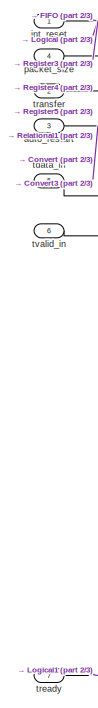
[diagram: Data Inspector/M_AXIS_SYMBOL_CTRL/AXI_Write_Interface - part 1/3, left side, full height]
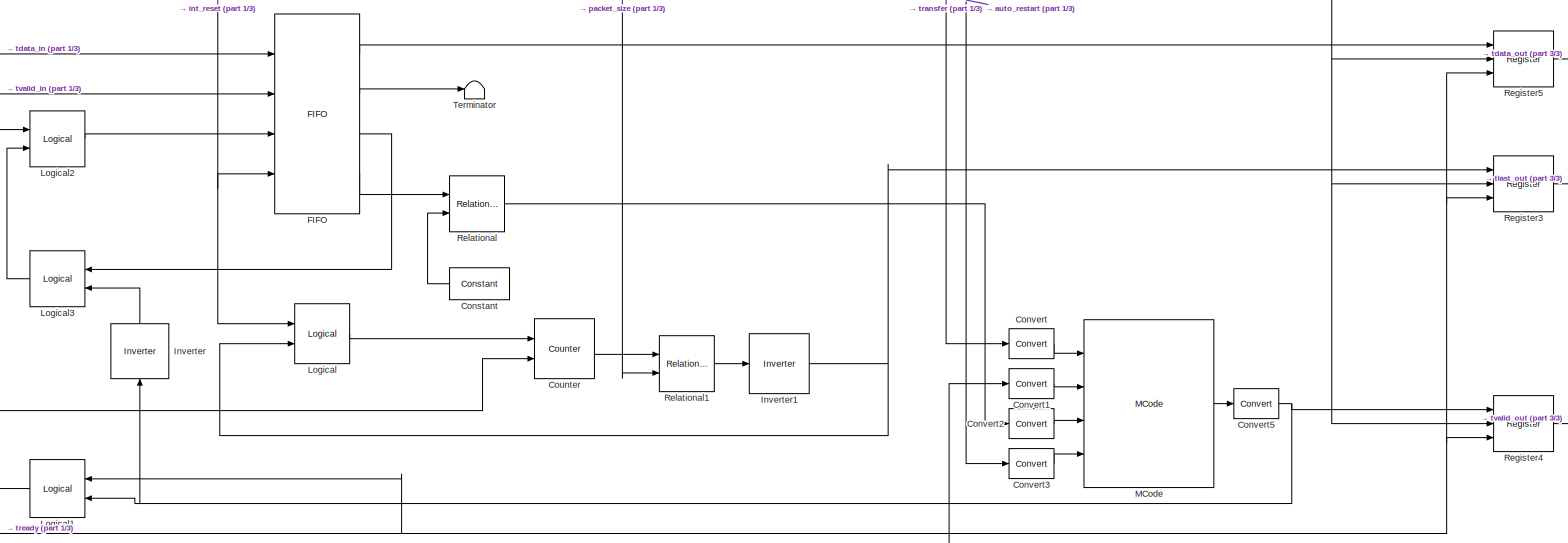
[diagram: Data Inspector/M_AXIS_SYMBOL_CTRL/AXI_Write_Interface - part 2/3, most of the canvas]
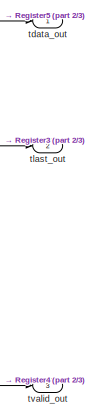
[diagram: Data Inspector/M_AXIS_SYMBOL_CTRL/AXI_Write_Interface - part 3/3, middle right region]
BLOCK [SubSystem] Data Inspector/M_AXIS_SYMBOL_CTRL/AXI_Write_Interface
  Ports = [7, 3]
  RequestExecContextInheritance = off
BLOCK [Reference] Data Inspector/M_AXIS_SYMBOL_CTRL/AXI_Write_Interface/Constant  REF=xbsIndex_r4/Constant
  Ports = [0, 1]
  SourceBlock = xbsIndex_r4/Constant
  SourceType = Xilinx Constant Block Block
BLOCK [Reference] Data Inspector/M_AXIS_SYMBOL_CTRL/AXI_Write_Interface/Convert  REF=xbsIndex_r4/Convert
  Ports = [1, 1]
  SourceBlock = xbsIndex_r4/Convert
  SourceType = Xilinx Type Converter Block
BLOCK [Reference] Data Inspector/M_AXIS_SYMBOL_CTRL/AXI_Write_Interface/Convert1  REF=xbsIndex_r4/Convert
  Ports = [1, 1]
  SourceBlock = xbsIndex_r4/Convert
  SourceType = Xilinx Type Converter Block
BLOCK [Reference] Data Inspector/M_AXIS_SYMBOL_CTRL/AXI_Write_Interface/Convert2  REF=xbsIndex_r4/Convert
  Ports = [1, 1]
  SourceBlock = xbsIndex_r4/Convert
  SourceType = Xilinx Type Converter Block
BLOCK [Reference] Data Inspector/M_AXIS_SYMBOL_CTRL/AXI_Write_Interface/Convert3  REF=xbsIndex_r4/Convert
  Ports = [1, 1]
  SourceBlock = xbsIndex_r4/Convert
  SourceType = Xilinx Type Converter Block
BLOCK [Reference] Data Inspector/M_AXIS_SYMBOL_CTRL/AXI_Write_Interface/Convert5  REF=xbsIndex_r4/Convert
  Ports = [1, 1]
  SourceBlock = xbsIndex_r4/Convert
  SourceType = Xilinx Type Converter Block
BLOCK [Reference] Data Inspector/M_AXIS_SYMBOL_CTRL/AXI_Write_Interface/Counter  REF=xbsIndex_r4/Counter
  Ports = [2, 1]
  SourceBlock = xbsIndex_r4/Counter
  SourceType = Xilinx Counter Block
BLOCK [Reference] Data Inspector/M_AXIS_SYMBOL_CTRL/AXI_Write_Interface/FIFO  REF=xbsIndex_r4/FIFO
  Ports = [4, 4]
  SourceBlock = xbsIndex_r4/FIFO
  SourceType = Xilinx FIFO Block Block
BLOCK [Reference] Data Inspector/M_AXIS_SYMBOL_CTRL/AXI_Write_Interface/Inverter  REF=xbsIndex_r4/Inverter
  NameLocation = left
  Ports = [1, 1]
  SourceBlock = xbsIndex_r4/Inverter
  SourceType = Xilinx Inverter Block
BLOCK [Reference] Data Inspector/M_AXIS_SYMBOL_CTRL/AXI_Write_Interface/Inverter1  REF=xbsIndex_r4/Inverter
  Ports = [1, 1]
  SourceBlock = xbsIndex_r4/Inverter
  SourceType = Xilinx Inverter Block
BLOCK [Reference] Data Inspector/M_AXIS_SYMBOL_CTRL/AXI_Write_Interface/Logical  REF=xbsIndex_r4/Logical
  Ports = [2, 1]
  SourceBlock = xbsIndex_r4/Logical
  SourceType = Xilinx Logical Block Block
BLOCK [Reference] Data Inspector/M_AXIS_SYMBOL_CTRL/AXI_Write_Interface/Logical1  REF=xbsIndex_r4/Logical
  NameLocation = top
  Ports = [2, 1]
  SourceBlock = xbsIndex_r4/Logical
  SourceType = Xilinx Logical Block Block
BLOCK [Reference] Data Inspector/M_AXIS_SYMBOL_CTRL/AXI_Write_Interface/Logical2  REF=xbsIndex_r4/Logical
  Ports = [2, 1]
  SourceBlock = xbsIndex_r4/Logical
  SourceType = Xilinx Logical Block Block
BLOCK [Reference] Data Inspector/M_AXIS_SYMBOL_CTRL/AXI_Write_Interface/Logical3  REF=xbsIndex_r4/Logical
  NameLocation = top
  Ports = [2, 1]
  SourceBlock = xbsIndex_r4/Logical
  SourceType = Xilinx Logical Block Block
BLOCK [Reference] Data Inspector/M_AXIS_SYMBOL_CTRL/AXI_Write_Interface/MCode  REF=xbsIndex_r4/MCode
  Ports = [4, 1]
  SourceBlock = xbsIndex_r4/MCode
  SourceType = Xilinx MCode Block Block
BLOCK [Reference] Data Inspector/M_AXIS_SYMBOL_CTRL/AXI_Write_Interface/Register3  REF=xbsIndex_r4/Register
  Ports = [3, 1]
  SourceBlock = xbsIndex_r4/Register
  SourceType = Xilinx Register Block
BLOCK [Reference] Data Inspector/M_AXIS_SYMBOL_CTRL/AXI_Write_Interface/Register4  REF=xbsIndex_r4/Register
  Ports = [3, 1]
  SourceBlock = xbsIndex_r4/Register
  SourceType = Xilinx Register Block
BLOCK [Reference] Data Inspector/M_AXIS_SYMBOL_CTRL/AXI_Write_Interface/Register5  REF=xbsIndex_r4/Register
  Ports = [3, 1]
  SourceBlock = xbsIndex_r4/Register
  SourceType = Xilinx Register Block
BLOCK [Reference] Data Inspector/M_AXIS_SYMBOL_CTRL/AXI_Write_Interface/Relational  REF=xbsIndex_r4/Relational
  Ports = [2, 1]
  SourceBlock = xbsIndex_r4/Relational
  SourceType = Xilinx Arithmetic Relational Operator Block
BLOCK [Reference] Data Inspector/M_AXIS_SYMBOL_CTRL/AXI_Write_Interface/Relational1  REF=xbsIndex_r4/Relational
  Ports = [2, 1]
  SourceBlock = xbsIndex_r4/Relational
  SourceType = Xilinx Arithmetic Relational Operator Block
BLOCK [Terminator] Data Inspector/M_AXIS_SYMBOL_CTRL/AXI_Write_Interface/Terminator
BLOCK [Inport] Data Inspector/M_AXIS_SYMBOL_CTRL/AXI_Write_Interface/auto_restart
  Port = 3
BLOCK [Inport] Data Inspector/M_AXIS_SYMBOL_CTRL/AXI_Write_Interface/int_reset
BLOCK [Inport] Data Inspector/M_AXIS_SYMBOL_CTRL/AXI_Write_Interface/packet_size
  Port = 4
BLOCK [Inport] Data Inspector/M_AXIS_SYMBOL_CTRL/AXI_Write_Interface/tdata_in
  Port = 5
BLOCK [Outport] Data Inspector/M_AXIS_SYMBOL_CTRL/AXI_Write_Interface/tdata_out
  VectorParamsAs1DForOutWhenUnconnected = off
BLOCK [Outport] Data Inspector/M_AXIS_SYMBOL_CTRL/AXI_Write_Interface/tlast_out
  Port = 2
  VectorParamsAs1DForOutWhenUnconnected = off
BLOCK [Inport] Data Inspector/M_AXIS_SYMBOL_CTRL/AXI_Write_Interface/transfer
  Port = 2
BLOCK [Inport] Data Inspector/M_AXIS_SYMBOL_CTRL/AXI_Write_Interface/tready
  Port = 7
BLOCK [Inport] Data Inspector/M_AXIS_SYMBOL_CTRL/AXI_Write_Interface/tvalid_in
  Port = 6
BLOCK [Outport] Data Inspector/M_AXIS_SYMBOL_CTRL/AXI_Write_Interface/tvalid_out
  Port = 3
  VectorParamsAs1DForOutWhenUnconnected = off
BLOCK [Reference] Data Inspector/M_AXIS_SYMBOL_CTRL/Concat  REF=xbsIndex_r4/Concat
  Ports = [2, 1]
  SourceBlock = xbsIndex_r4/Concat
  SourceType = Xilinx Bus Concatenator Block
BLOCK [Reference] Data Inspector/M_AXIS_SYMBOL_CTRL/Convert  REF=xbsIndex_r4/Convert
  Ports = [1, 1]
  SourceBlock = xbsIndex_r4/Convert
  SourceType = Xilinx Type Converter Block
BLOCK [Reference] Data Inspector/M_AXIS_SYMBOL_CTRL/Convert1  REF=xbsIndex_r4/Convert
  Ports = [1, 1]
  SourceBlock = xbsIndex_r4/Convert
  SourceType = Xilinx Type Converter Block
BLOCK [Reference] Data Inspector/M_AXIS_SYMBOL_CTRL/Convert4  REF=xbsIndex_r4/Convert
  Ports = [1, 1]
  SourceBlock = xbsIndex_r4/Convert
  SourceType = Xilinx Type Converter Block
BLOCK [Reference] Data Inspector/M_AXIS_SYMBOL_CTRL/Reinterpret  REF=xbsIndex_r4/Reinterpret
  Ports = [1, 1]
  SourceBlock = xbsIndex_r4/Reinterpret
  SourceType = Xilinx Type Reinterpreter Block
BLOCK [Reference] Data Inspector/M_AXIS_SYMBOL_CTRL/Reinterpret1  REF=xbsIndex_r4/Reinterpret
  Ports = [1, 1]
  SourceBlock = xbsIndex_r4/Reinterpret
  SourceType = Xilinx Type Reinterpreter Block
BLOCK [Inport] Data Inspector/M_AXIS_SYMBOL_CTRL/auto_restart
  Port = 8
BLOCK [Inport] Data Inspector/M_AXIS_SYMBOL_CTRL/i_data
BLOCK [Inport] Data Inspector/M_AXIS_SYMBOL_CTRL/packet_size
  Port = 5
BLOCK [Inport] Data Inspector/M_AXIS_SYMBOL_CTRL/q_data
  Port = 3
BLOCK [Inport] Data Inspector/M_AXIS_SYMBOL_CTRL/reset
  Port = 4
BLOCK [Outport] Data Inspector/M_AXIS_SYMBOL_CTRL/tdata_out
  VectorParamsAs1DForOutWhenUnconnected = off
BLOCK [Outport] Data Inspector/M_AXIS_SYMBOL_CTRL/tlast_out
  Port = 3
  VectorParamsAs1DForOutWhenUnconnected = off
BLOCK [Inport] Data Inspector/M_AXIS_SYMBOL_CTRL/transfer
  Port = 7
BLOCK [Inport] Data Inspector/M_AXIS_SYMBOL_CTRL/tready_in
  Port = 6
BLOCK [Inport] Data Inspector/M_AXIS_SYMBOL_CTRL/tvalid_in
  Port = 2
BLOCK [Outport] Data Inspector/M_AXIS_SYMBOL_CTRL/tvalid_out
  Port = 2
  VectorParamsAs1DForOutWhenUnconnected = off
BLOCK [Inport] Data Inspector/auto_restart
  Port = 7
BLOCK [Inport] Data Inspector/packet_size
  Port = 5
BLOCK [Inport] Data Inspector/reset
  Port = 4
BLOCK [Inport] Data Inspector/symbol_i_data
BLOCK [Inport] Data Inspector/symbol_i_valid
  Port = 2
BLOCK [Inport] Data Inspector/symbol_q_data
  Port = 3
BLOCK [Outport] Data Inspector/tdata_out
  VectorParamsAs1DForOutWhenUnconnected = off
BLOCK [Outport] Data Inspector/tlast_out
  Port = 3
  VectorParamsAs1DForOutWhenUnconnected = off
BLOCK [Inport] Data Inspector/transfer
  Port = 6
BLOCK [Inport] Data Inspector/tready_in
  Port = 8
BLOCK [Outport] Data Inspector/tvalid_out
  Port = 2
  VectorParamsAs1DForOutWhenUnconnected = off
BLOCK [Reference] Delay  REF=xbsIndex_r4/Delay
  Ports = [1, 1]
  SourceBlock = xbsIndex_r4/Delay
  SourceType = Xilinx Delay Block
BLOCK [Reference] Delay1  REF=xbsIndex_r4/Delay
  Ports = [1, 1]
  SourceBlock = xbsIndex_r4/Delay
  SourceType = Xilinx Delay Block
BLOCK [Reference] Delay2  REF=xbsIndex_r4/Delay
  Ports = [1, 1]
  SourceBlock = xbsIndex_r4/Delay
  SourceType = Xilinx Delay Block
BLOCK [Reference] Delay3  REF=xbsIndex_r4/Delay
  Ports = [1, 1]
  SourceBlock = xbsIndex_r4/Delay
  SourceType = Xilinx Delay Block
BLOCK [Reference] Delay5  REF=xbsIndex_r4/Delay
  Ports = [1, 1]
  SourceBlock = xbsIndex_r4/Delay
  SourceType = Xilinx Delay Block
BLOCK [Reference] Delay6  REF=xbsIndex_r4/Delay
  Ports = [1, 1]
  SourceBlock = xbsIndex_r4/Delay
  SourceType = Xilinx Delay Block
BLOCK [Reference] Down Sample  REF=xbsIndex_r4/Down Sample
  Ports = [1, 1]
  SourceBlock = xbsIndex_r4/Down Sample
  SourceType = Xilinx Down Sampler Block
BLOCK [Reference] Down Sample1  REF=xbsIndex_r4/Down Sample
  Ports = [1, 1]
  SourceBlock = xbsIndex_r4/Down Sample
  SourceType = Xilinx Down Sampler Block
BLOCK [Reference] Enable  REF=xbsIndex_r4/Gateway In
  Ports = [1, 1]
  SourceBlock = xbsIndex_r4/Gateway In
  SourceType = Xilinx Gateway In Block
BLOCK [Reference] Logical  REF=xbsIndex_r4/Logical
  Ports = [2, 1]
  SourceBlock = xbsIndex_r4/Logical
  SourceType = Xilinx Logical Block Block
BLOCK [Reference] Logical1  REF=xbsIndex_r4/Logical
  Ports = [2, 1]
  SourceBlock = xbsIndex_r4/Logical
  SourceType = Xilinx Logical Block Block
BLOCK [SubSystem] M_AXIS_TAP
  Ports = [4, 4]
  RequestExecContextInheritance = off
BLOCK [Reference] M_AXIS_TAP/m_axis_tap_tdata  REF=xbsIndex_r4/Gateway Out
  Ports = [1, 1]
  SourceBlock = xbsIndex_r4/Gateway Out
  SourceType = Xilinx Gateway Out Block
BLOCK [Reference] M_AXIS_TAP/m_axis_tap_tlast  REF=xbsIndex_r4/Gateway Out
  Ports = [1, 1]
  SourceBlock = xbsIndex_r4/Gateway Out
  SourceType = Xilinx Gateway Out Block
BLOCK [Reference] M_AXIS_TAP/m_axis_tap_tready  REF=xbsIndex_r4/Gateway In
  Ports = [1, 1]
  SourceBlock = xbsIndex_r4/Gateway In
  SourceType = Xilinx Gateway In Block
BLOCK [Reference] M_AXIS_TAP/m_axis_tap_tvalid  REF=xbsIndex_r4/Gateway Out
  Ports = [1, 1]
  SourceBlock = xbsIndex_r4/Gateway Out
  SourceType = Xilinx Gateway Out Block
BLOCK [Inport] M_AXIS_TAP/tData_in
BLOCK [Outport] M_AXIS_TAP/tData_out
  VectorParamsAs1DForOutWhenUnconnected = off
BLOCK [Inport] M_AXIS_TAP/tLast_in
  Port = 3
BLOCK [Outport] M_AXIS_TAP/tLast_out
  Port = 2
  VectorParamsAs1DForOutWhenUnconnected = off
BLOCK [Inport] M_AXIS_TAP/tReady_in
  Port = 4
BLOCK [Outport] M_AXIS_TAP/tReady_out
  Port = 4
  VectorParamsAs1DForOutWhenUnconnected = off
BLOCK [Inport] M_AXIS_TAP/tValid_in
  Port = 2
BLOCK [Outport] M_AXIS_TAP/tValid_out
  Port = 3
  VectorParamsAs1DForOutWhenUnconnected = off
BLOCK [Reference] PacketSizeRF  REF=xbsIndex_r4/Gateway In
  Ports = [1, 1]
  SourceBlock = xbsIndex_r4/Gateway In
  SourceType = Xilinx Gateway In Block
BLOCK [Reference] Reinterpret  REF=xbsIndex_r4/Reinterpret
  Ports = [1, 1]
  SourceBlock = xbsIndex_r4/Reinterpret
  SourceType = Xilinx Type Reinterpreter Block
BLOCK [Reference] Reinterpret1  REF=xbsIndex_r4/Reinterpret
  Ports = [1, 1]
  SourceBlock = xbsIndex_r4/Reinterpret
  SourceType = Xilinx Type Reinterpreter Block
BLOCK [Reference] Relational  REF=xbsIndex_r4/Relational
  Ports = [2, 1]
  SourceBlock = xbsIndex_r4/Relational
  SourceType = Xilinx Arithmetic Relational Operator Block
BLOCK [Reference] RxReset  REF=xbsIndex_r4/Gateway In
  Ports = [1, 1]
  SourceBlock = xbsIndex_r4/Gateway In
  SourceType = Xilinx Gateway In Block
BLOCK [Scope] Scope
  Floating = off
  NumInputPorts = 3
  Ports = [3]
  ScopeSpecificationString = Simulink.scopes.TimeScopeBlockCfg('CurrentConfiguration', extmgr.ConfigurationSet(extmgr.Configuration('Core','General UI',true),extmgr.Configuration('Core','Source UI',true),extmgr.Configuration('Sources','WiredSimulink',true,'DataLoggingVariableName','ScopeData1'),extmgr.Configuration('Visuals','Time Domain',true,'SerializedDisplays',{struct('MinYLimReal','-1.00000','MaxYLimReal','1.00000','YLab...<+2832ch>
BLOCK [Reference] Slice  REF=xbsIndex_r4/Slice
  Ports = [1, 1]
  SourceBlock = xbsIndex_r4/Slice
  SourceType = Xilinx Bit Slice Extractor Block
BLOCK [Reference] Slice1  REF=xbsIndex_r4/Slice
  Ports = [1, 1]
  SourceBlock = xbsIndex_r4/Slice
  SourceType = Xilinx Bit Slice Extractor Block
BLOCK [Reference] Slice2  REF=xbsIndex_r4/Slice
  Ports = [1, 1]
  SourceBlock = xbsIndex_r4/Slice
  SourceType = Xilinx Bit Slice Extractor Block
BLOCK [Reference] Slice3  REF=xbsIndex_r4/Slice
  Ports = [1, 1]
  SourceBlock = xbsIndex_r4/Slice
  SourceType = Xilinx Bit Slice Extractor Block
BLOCK [SubSystem] Timing Synch
  Ports = [4, 1]
  RequestExecContextInheritance = off
BLOCK [Reference] Timing Synch/AddSub  REF=xbsIndex_r4/AddSub
  Ports = [2, 1]
  SourceBlock = xbsIndex_r4/AddSub
  SourceType = Xilinx Adder/Subtracter Block
BLOCK [Reference] Timing Synch/AddSub1  REF=xbsIndex_r4/AddSub
  Ports = [2, 1]
  SourceBlock = xbsIndex_r4/AddSub
  SourceType = Xilinx Adder/Subtracter Block
BLOCK [Reference] Timing Synch/AddSub2  REF=xbsIndex_r4/AddSub
  Ports = [2, 1]
  SourceBlock = xbsIndex_r4/AddSub
  SourceType = Xilinx Adder/Subtracter Block
BLOCK [Reference] Timing Synch/Delay  REF=xbsIndex_r4/Delay
  Ports = [1, 1]
  SourceBlock = xbsIndex_r4/Delay
  SourceType = Xilinx Delay Block
BLOCK [Reference] Timing Synch/Delay1  REF=xbsIndex_r4/Delay
  Ports = [1, 1]
  SourceBlock = xbsIndex_r4/Delay
  SourceType = Xilinx Delay Block
BLOCK [Reference] Timing Synch/Delay10  REF=xbsIndex_r4/Delay
  Ports = [1, 1]
  SourceBlock = xbsIndex_r4/Delay
  SourceType = Xilinx Delay Block
BLOCK [Reference] Timing Synch/Delay11  REF=xbsIndex_r4/Delay
  NameLocation = left
  Ports = [1, 1]
  SourceBlock = xbsIndex_r4/Delay
  SourceType = Xilinx Delay Block
BLOCK [Reference] Timing Synch/Delay12  REF=xbsIndex_r4/Delay
  Ports = [1, 1]
  SourceBlock = xbsIndex_r4/Delay
  SourceType = Xilinx Delay Block
BLOCK [Reference] Timing Synch/Delay2  REF=xbsIndex_r4/Delay
  Ports = [1, 1]
  SourceBlock = xbsIndex_r4/Delay
  SourceType = Xilinx Delay Block
BLOCK [Reference] Timing Synch/Delay6  REF=xbsIndex_r4/Delay
  Ports = [1, 1]
  SourceBlock = xbsIndex_r4/Delay
  SourceType = Xilinx Delay Block
BLOCK [Inport] Timing Synch/I_In
BLOCK [Reference] Timing Synch/Logical  REF=xbsIndex_r4/Logical
  Ports = [2, 1]
  SourceBlock = xbsIndex_r4/Logical
  SourceType = Xilinx Logical Block Block
BLOCK [SubSystem] Timing Synch/Loop Filter
  Ports = [3, 1]
  RequestExecContextInheritance = off
BLOCK [Reference] Timing Synch/Loop Filter/AddSub3  REF=xbsIndex_r4/AddSub
  Ports = [2, 1]
  SourceBlock = xbsIndex_r4/AddSub
  SourceType = Xilinx Adder/Subtracter Block
BLOCK [Reference] Timing Synch/Loop Filter/AddSub4  REF=xbsIndex_r4/AddSub
  Ports = [2, 1]
  SourceBlock = xbsIndex_r4/AddSub
  SourceType = Xilinx Adder/Subtracter Block
BLOCK [Reference] Timing Synch/Loop Filter/CMult  REF=xbsIndex_r4/CMult
  Ports = [1, 1]
  SourceBlock = xbsIndex_r4/CMult
  SourceType = Xilinx Constant Multiplier Block
BLOCK [Reference] Timing Synch/Loop Filter/CMult1  REF=xbsIndex_r4/CMult
  Ports = [1, 1]
  SourceBlock = xbsIndex_r4/CMult
  SourceType = Xilinx Constant Multiplier Block
BLOCK [Reference] Timing Synch/Loop Filter/Constant  REF=xbsIndex_r4/Constant
  Ports = [0, 1]
  SourceBlock = xbsIndex_r4/Constant
  SourceType = Xilinx Constant Block Block
BLOCK [Inport] Timing Synch/Loop Filter/En
  Port = 2
BLOCK [Outport] Timing Synch/Loop Filter/Error_Filt
  VectorParamsAs1DForOutWhenUnconnected = off
BLOCK [Reference] Timing Synch/Loop Filter/Mux  REF=xbsIndex_r4/Mux
  Ports = [3, 1]
  SourceBlock = xbsIndex_r4/Mux
  SourceType = Xilinx Bus Multiplexer Block
BLOCK [Reference] Timing Synch/Loop Filter/Register1  REF=xbsIndex_r4/Register
  Ports = [3, 1]
  SourceBlock = xbsIndex_r4/Register
  SourceType = Xilinx Register Block
BLOCK [Inport] Timing Synch/Loop Filter/Signal
BLOCK [Inport] Timing Synch/Loop Filter/reset
  Port = 3
BLOCK [Reference] Timing Synch/Mult1  REF=xbsIndex_r4/Mult
  Ports = [2, 1]
  SourceBlock = xbsIndex_r4/Mult
  SourceType = Xilinx Multiplier Block
BLOCK [Reference] Timing Synch/Mult2  REF=xbsIndex_r4/Mult
  Ports = [2, 1]
  SourceBlock = xbsIndex_r4/Mult
  SourceType = Xilinx Multiplier Block
BLOCK [SubSystem] Timing Synch/NCC
  Ports = [2, 2]
  RequestExecContextInheritance = off
BLOCK [Reference] Timing Synch/NCC/AddSub1  REF=xbsIndex_r4/AddSub
  Ports = [2, 1]
  SourceBlock = xbsIndex_r4/AddSub
  SourceType = Xilinx Adder/Subtracter Block
BLOCK [Reference] Timing Synch/NCC/AddSub5  REF=xbsIndex_r4/AddSub
  Ports = [2, 1]
  SourceBlock = xbsIndex_r4/AddSub
  SourceType = Xilinx Adder/Subtracter Block
BLOCK [Reference] Timing Synch/NCC/AddSub6  REF=xbsIndex_r4/AddSub
  Ports = [2, 1]
  SourceBlock = xbsIndex_r4/AddSub
  SourceType = Xilinx Adder/Subtracter Block
BLOCK [Outport] Timing Synch/NCC/Adj_Step
  Port = 2
  VectorParamsAs1DForOutWhenUnconnected = off
BLOCK [Reference] Timing Synch/NCC/Constant1  REF=xbsIndex_r4/Constant
  Ports = [0, 1]
  SourceBlock = xbsIndex_r4/Constant
  SourceType = Xilinx Constant Block Block
BLOCK [Reference] Timing Synch/NCC/Constant2  REF=xbsIndex_r4/Constant
  Ports = [0, 1]
  SourceBlock = xbsIndex_r4/Constant
  SourceType = Xilinx Constant Block Block
BLOCK [Inport] Timing Synch/NCC/En
  Port = 2
BLOCK [Inport] Timing Synch/NCC/Error_Filt
BLOCK [Reference] Timing Synch/NCC/Mux  REF=xbsIndex_r4/Mux
  Ports = [3, 1]
  SourceBlock = xbsIndex_r4/Mux
  SourceType = Xilinx Bus Multiplexer Block
BLOCK [Reference] Timing Synch/NCC/Register  REF=xbsIndex_r4/Register
  Ports = [2, 1]
  SourceBlock = xbsIndex_r4/Register
  SourceType = Xilinx Register Block
BLOCK [Reference] Timing Synch/NCC/Relational  REF=xbsIndex_r4/Relational
  Ports = [2, 1]
  SourceBlock = xbsIndex_r4/Relational
  SourceType = Xilinx Arithmetic Relational Operator Block
BLOCK [Reference] Timing Synch/NCC/Relational1  REF=xbsIndex_r4/Relational
  Ports = [2, 1]
  SourceBlock = xbsIndex_r4/Relational
  SourceType = Xilinx Arithmetic Relational Operator Block
BLOCK [Outport] Timing Synch/NCC/Strobe
  VectorParamsAs1DForOutWhenUnconnected = off
BLOCK [Inport] Timing Synch/Q_In
  Port = 2
BLOCK [Reference] Timing Synch/Register  REF=xbsIndex_r4/Register
  Ports = [2, 1]
  SourceBlock = xbsIndex_r4/Register
  SourceType = Xilinx Register Block
BLOCK [Reference] Timing Synch/Register1  REF=xbsIndex_r4/Register
  Ports = [2, 1]
  SourceBlock = xbsIndex_r4/Register
  SourceType = Xilinx Register Block
BLOCK [Reference] Timing Synch/Register2  REF=xbsIndex_r4/Register
  Ports = [2, 1]
  SourceBlock = xbsIndex_r4/Register
  SourceType = Xilinx Register Block
BLOCK [Outport] Timing Synch/Sample_Valid
  VectorParamsAs1DForOutWhenUnconnected = off
BLOCK [Terminator] Timing Synch/Terminator
  NameLocation = top
BLOCK [Terminator] Timing Synch/Terminator1
BLOCK [Terminator] Timing Synch/Terminator2
BLOCK [Inport] Timing Synch/Valid_in
  Port = 3
BLOCK [Inport] Timing Synch/reset
  Port = 4
BLOCK [Reference] auto_restart  REF=xbsIndex_r4/Gateway In
  Ports = [1, 1]
  SourceBlock = xbsIndex_r4/Gateway In
  SourceType = Xilinx Gateway In Block
BLOCK [Reference] i_samples  REF=xbsIndex_r4/Slice
  Ports = [1, 1]
  SourceBlock = xbsIndex_r4/Slice
  SourceType = Xilinx Bit Slice Extractor Block
BLOCK [Reference] q_samples  REF=xbsIndex_r4/Slice
  Ports = [1, 1]
  SourceBlock = xbsIndex_r4/Slice
  SourceType = Xilinx Bit Slice Extractor Block
BLOCK [Reference] s_axis_tdata  REF=xbsIndex_r4/Gateway In
  Ports = [1, 1]
  SourceBlock = xbsIndex_r4/Gateway In
  SourceType = Xilinx Gateway In Block
BLOCK [Reference] s_axis_tvalid  REF=xbsIndex_r4/Gateway In
  Ports = [1, 1]
  SourceBlock = xbsIndex_r4/Gateway In
  SourceType = Xilinx Gateway In Block
BLOCK [Reference] syncReset  REF=xbsIndex_r4/Gateway In
  Ports = [1, 1]
  SourceBlock = xbsIndex_r4/Gateway In
  SourceType = Xilinx Gateway In Block
BLOCK [Reference] transfer  REF=xbsIndex_r4/Gateway In
  Ports = [1, 1]
  SourceBlock = xbsIndex_r4/Gateway In
  SourceType = Xilinx Gateway In Block
ANNOTATION (root): AXI QPSK Receiver: Synchronisation
ANNOTATION (root): C opyright (c) 2019, Louise Crockett, Josh Goldsmith, David Northcote, and Craig Ramsay
ANNOTATION Carrier Synch: generate symbol estimate: (-1,+1) (+1,+1) (-1,-1) (+1,-1)
ANNOTATION Carrier Synch: this pair of registers operate at OSR
ANNOTATION Timing Synch: EARLY (I)
ANNOTATION Timing Synch: EARLY (Q)
ANNOTATION Timing Synch: LATE (I)
ANNOTATION Timing Synch: LATE (Q)
ANNOTATION Timing Synch: ONTIME (I)
ANNOTATION Timing Synch: ONTIME (Q)
ANNOTATION Timing Synch/NCC: OSR might not be a power of 2 (so simply detecting wrap is not sufficient). Section to left is equivalent to modulo (OSR).
LINE Carrier Synch/De-Rotate Constellation/AddSub1:1 -> Carrier Synch/De-Rotate Constellation/X_out:1
LINE Carrier Synch/De-Rotate Constellation/AddSub:1 -> Carrier Synch/De-Rotate Constellation/Y_out:1
NET Carrier Synch/De-Rotate Constellation/Cos_error:1 -> Carrier Synch/De-Rotate Constellation/Mult2:2, Carrier Synch/De-Rotate Constellation/Mult3:2
LINE Carrier Synch/De-Rotate Constellation/Delay1:1 -> Carrier Synch/De-Rotate Constellation/En_out:1
LINE Carrier Synch/De-Rotate Constellation/Delay:1 -> Carrier Synch/De-Rotate Constellation/Delay1:1
LINE Carrier Synch/De-Rotate Constellation/En_in:1 -> Carrier Synch/De-Rotate Constellation/Delay:1
LINE Carrier Synch/De-Rotate Constellation/Mult1:1 -> Carrier Synch/De-Rotate Constellation/AddSub:1
LINE Carrier Synch/De-Rotate Constellation/Mult2:1 -> Carrier Synch/De-Rotate Constellation/AddSub1:1
LINE Carrier Synch/De-Rotate Constellation/Mult3:1 -> Carrier Synch/De-Rotate Constellation/AddSub:2
LINE Carrier Synch/De-Rotate Constellation/Mult4:1 -> Carrier Synch/De-Rotate Constellation/AddSub1:2
NET Carrier Synch/De-Rotate Constellation/Neg_Sin_error:1 -> Carrier Synch/De-Rotate Constellation/Mult1:2, Carrier Synch/De-Rotate Constellation/Mult4:2
NET Carrier Synch/De-Rotate Constellation/X_in:1 -> Carrier Synch/De-Rotate Constellation/Mult1:1, Carrier Synch/De-Rotate Constellation/Mult2:1
NET Carrier Synch/De-Rotate Constellation/Y_in:1 -> Carrier Synch/De-Rotate Constellation/Mult3:1, Carrier Synch/De-Rotate Constellation/Mult4:1
NET Carrier Synch/De-Rotate Constellation:1 -> Carrier Synch/Delay:1, Carrier Synch/Register4:2, Carrier Synch/Register5:2
LINE Carrier Synch/De-Rotate Constellation:2 -> Carrier Synch/Register4:1
LINE Carrier Synch/De-Rotate Constellation:3 -> Carrier Synch/Register5:1
LINE Carrier Synch/Delay1:1 -> Carrier Synch/Loop Filter:2
NET Carrier Synch/Delay:1 -> Carrier Synch/Generate Angle Error:5, Carrier Synch/Symbol_strobe:1
LINE Carrier Synch/Gateway Out1:1 -> Carrier Synch/Time Scope6:2
LINE Carrier Synch/Gateway Out2:1 -> Carrier Synch/Time Scope6:3
LINE Carrier Synch/Gateway Out3:1 -> Carrier Synch/Time Scope1:1
LINE Carrier Synch/Gateway Out4:1 -> Carrier Synch/Time Scope1:2
LINE Carrier Synch/Gateway Out5:1 -> Carrier Synch/Time Scope1:3
LINE Carrier Synch/Gateway Out:1 -> Carrier Synch/Time Scope6:1
LINE Carrier Synch/Generate Angle Error/AddSub:1 -> Carrier Synch/Generate Angle Error/Angle_Error:1
LINE Carrier Synch/Generate Angle Error/Concat:1 -> Carrier Synch/Generate Angle Error/Delay21:1
LINE Carrier Synch/Generate Angle Error/Constant:1 -> Carrier Synch/Generate Angle Error/Vectoring Cell 0:3
LINE Carrier Synch/Generate Angle Error/Delay10:1 -> Carrier Synch/Generate Angle Error/Vectoring Cell 4:2
LINE Carrier Synch/Generate Angle Error/Delay11:1 -> Carrier Synch/Generate Angle Error/Vectoring Cell 4:3
LINE Carrier Synch/Generate Angle Error/Delay12:1 -> Carrier Synch/Generate Angle Error/Vectoring Cell 5:1
LINE Carrier Synch/Generate Angle Error/Delay13:1 -> Carrier Synch/Generate Angle Error/Vectoring Cell 5:2
LINE Carrier Synch/Generate Angle Error/Delay14:1 -> Carrier Synch/Generate Angle Error/Vectoring Cell 5:3
LINE Carrier Synch/Generate Angle Error/Delay15:1 -> Carrier Synch/Generate Angle Error/Vectoring Cell 6:1
LINE Carrier Synch/Generate Angle Error/Delay16:1 -> Carrier Synch/Generate Angle Error/Vectoring Cell 6:2
LINE Carrier Synch/Generate Angle Error/Delay17:1 -> Carrier Synch/Generate Angle Error/Vectoring Cell 6:3
LINE Carrier Synch/Generate Angle Error/Delay18:1 -> Carrier Synch/Generate Angle Error/Vectoring Cell 7:1
LINE Carrier Synch/Generate Angle Error/Delay19:1 -> Carrier Synch/Generate Angle Error/Vectoring Cell 7:2
LINE Carrier Synch/Generate Angle Error/Delay1:1 -> Carrier Synch/Generate Angle Error/Vectoring Cell 1:2
LINE Carrier Synch/Generate Angle Error/Delay20:1 -> Carrier Synch/Generate Angle Error/Vectoring Cell 7:3
LINE Carrier Synch/Generate Angle Error/Delay21:1 -> Carrier Synch/Generate Angle Error/ROM:1
LINE Carrier Synch/Generate Angle Error/Delay22:1 -> Carrier Synch/Generate Angle Error/AddSub:2
LINE Carrier Synch/Generate Angle Error/Delay23:1 -> Carrier Synch/Generate Angle Error/En_out:1
LINE Carrier Synch/Generate Angle Error/Delay2:1 -> Carrier Synch/Generate Angle Error/Vectoring Cell 1:3
LINE Carrier Synch/Generate Angle Error/Delay3:1 -> Carrier Synch/Generate Angle Error/Vectoring Cell 2:1
LINE Carrier Synch/Generate Angle Error/Delay4:1 -> Carrier Synch/Generate Angle Error/Vectoring Cell 2:2
LINE Carrier Synch/Generate Angle Error/Delay5:1 -> Carrier Synch/Generate Angle Error/Vectoring Cell 2:3
LINE Carrier Synch/Generate Angle Error/Delay6:1 -> Carrier Synch/Generate Angle Error/Vectoring Cell 3:1
LINE Carrier Synch/Generate Angle Error/Delay7:1 -> Carrier Synch/Generate Angle Error/Vectoring Cell 3:2
LINE Carrier Synch/Generate Angle Error/Delay8:1 -> Carrier Synch/Generate Angle Error/Vectoring Cell 3:3
LINE Carrier Synch/Generate Angle Error/Delay9:1 -> Carrier Synch/Generate Angle Error/Vectoring Cell 4:1
LINE Carrier Synch/Generate Angle Error/Delay:1 -> Carrier Synch/Generate Angle Error/Vectoring Cell 1:1
LINE Carrier Synch/Generate Angle Error/En_in:1 -> Carrier Synch/Generate Angle Error/Delay23:1
LINE Carrier Synch/Generate Angle Error/ROM:1 -> Carrier Synch/Generate Angle Error/Delay22:1
LINE Carrier Synch/Generate Angle Error/Vectoring Cell 0/AddSub1:1 -> Carrier Synch/Generate Angle Error/Vectoring Cell 0/z out:1
LINE Carrier Synch/Generate Angle Error/Vectoring Cell 0/AddSub2:1 -> Carrier Synch/Generate Angle Error/Vectoring Cell 0/x out:1
LINE Carrier Synch/Generate Angle Error/Vectoring Cell 0/AddSub3:1 -> Carrier Synch/Generate Angle Error/Vectoring Cell 0/y out:1
LINE Carrier Synch/Generate Angle Error/Vectoring Cell 0/Constant:1 -> Carrier Synch/Generate Angle Error/Vectoring Cell 0/AddSub1:2
LINE Carrier Synch/Generate Angle Error/Vectoring Cell 0/Inverter:1 -> Carrier Synch/Generate Angle Error/Vectoring Cell 0/AddSub3:3
NET Carrier Synch/Generate Angle Error/Vectoring Cell 0/Logical:1 -> Carrier Synch/Generate Angle Error/Vectoring Cell 0/AddSub1:3, Carrier Synch/Generate Angle Error/Vectoring Cell 0/AddSub2:3, Carrier Synch/Generate Angle Error/Vectoring Cell 0/Inverter:1
LINE Carrier Synch/Generate Angle Error/Vectoring Cell 0/Shift1:1 -> Carrier Synch/Generate Angle Error/Vectoring Cell 0/AddSub2:2
LINE Carrier Synch/Generate Angle Error/Vectoring Cell 0/Shift:1 -> Carrier Synch/Generate Angle Error/Vectoring Cell 0/AddSub3:2
LINE Carrier Synch/Generate Angle Error/Vectoring Cell 0/Slice1:1 -> Carrier Synch/Generate Angle Error/Vectoring Cell 0/Logical:2
LINE Carrier Synch/Generate Angle Error/Vectoring Cell 0/Slice:1 -> Carrier Synch/Generate Angle Error/Vectoring Cell 0/Logical:1
NET Carrier Synch/Generate Angle Error/Vectoring Cell 0/x in:1 -> Carrier Synch/Generate Angle Error/Vectoring Cell 0/AddSub2:1, Carrier Synch/Generate Angle Error/Vectoring Cell 0/Shift:1, Carrier Synch/Generate Angle Error/Vectoring Cell 0/Slice:1
NET Carrier Synch/Generate Angle Error/Vectoring Cell 0/y in:1 -> Carrier Synch/Generate Angle Error/Vectoring Cell 0/AddSub3:1, Carrier Synch/Generate Angle Error/Vectoring Cell 0/Shift1:1, Carrier Synch/Generate Angle Error/Vectoring Cell 0/Slice1:1
LINE Carrier Synch/Generate Angle Error/Vectoring Cell 0/z in:1 -> Carrier Synch/Generate Angle Error/Vectoring Cell 0/AddSub1:1
LINE Carrier Synch/Generate Angle Error/Vectoring Cell 0:1 -> Carrier Synch/Generate Angle Error/Delay:1
LINE Carrier Synch/Generate Angle Error/Vectoring Cell 0:2 -> Carrier Synch/Generate Angle Error/Delay1:1
LINE Carrier Synch/Generate Angle Error/Vectoring Cell 0:3 -> Carrier Synch/Generate Angle Error/Delay2:1
LINE Carrier Synch/Generate Angle Error/Vectoring Cell 1/AddSub1:1 -> Carrier Synch/Generate Angle Error/Vectoring Cell 1/z out:1
LINE Carrier Synch/Generate Angle Error/Vectoring Cell 1/AddSub2:1 -> Carrier Synch/Generate Angle Error/Vectoring Cell 1/x out:1
LINE Carrier Synch/Generate Angle Error/Vectoring Cell 1/AddSub3:1 -> Carrier Synch/Generate Angle Error/Vectoring Cell 1/y out:1
LINE Carrier Synch/Generate Angle Error/Vectoring Cell 1/Constant:1 -> Carrier Synch/Generate Angle Error/Vectoring Cell 1/AddSub1:2
LINE Carrier Synch/Generate Angle Error/Vectoring Cell 1/Inverter:1 -> Carrier Synch/Generate Angle Error/Vectoring Cell 1/AddSub3:3
NET Carrier Synch/Generate Angle Error/Vectoring Cell 1/Logical:1 -> Carrier Synch/Generate Angle Error/Vectoring Cell 1/AddSub1:3, Carrier Synch/Generate Angle Error/Vectoring Cell 1/AddSub2:3, Carrier Synch/Generate Angle Error/Vectoring Cell 1/Inverter:1
LINE Carrier Synch/Generate Angle Error/Vectoring Cell 1/Shift1:1 -> Carrier Synch/Generate Angle Error/Vectoring Cell 1/AddSub2:2
LINE Carrier Synch/Generate Angle Error/Vectoring Cell 1/Shift:1 -> Carrier Synch/Generate Angle Error/Vectoring Cell 1/AddSub3:2
LINE Carrier Synch/Generate Angle Error/Vectoring Cell 1/Slice1:1 -> Carrier Synch/Generate Angle Error/Vectoring Cell 1/Logical:2
LINE Carrier Synch/Generate Angle Error/Vectoring Cell 1/Slice:1 -> Carrier Synch/Generate Angle Error/Vectoring Cell 1/Logical:1
NET Carrier Synch/Generate Angle Error/Vectoring Cell 1/x in:1 -> Carrier Synch/Generate Angle Error/Vectoring Cell 1/AddSub2:1, Carrier Synch/Generate Angle Error/Vectoring Cell 1/Shift:1, Carrier Synch/Generate Angle Error/Vectoring Cell 1/Slice:1
NET Carrier Synch/Generate Angle Error/Vectoring Cell 1/y in:1 -> Carrier Synch/Generate Angle Error/Vectoring Cell 1/AddSub3:1, Carrier Synch/Generate Angle Error/Vectoring Cell 1/Shift1:1, Carrier Synch/Generate Angle Error/Vectoring Cell 1/Slice1:1
LINE Carrier Synch/Generate Angle Error/Vectoring Cell 1/z in:1 -> Carrier Synch/Generate Angle Error/Vectoring Cell 1/AddSub1:1
LINE Carrier Synch/Generate Angle Error/Vectoring Cell 1:1 -> Carrier Synch/Generate Angle Error/Delay3:1
LINE Carrier Synch/Generate Angle Error/Vectoring Cell 1:2 -> Carrier Synch/Generate Angle Error/Delay4:1
LINE Carrier Synch/Generate Angle Error/Vectoring Cell 1:3 -> Carrier Synch/Generate Angle Error/Delay5:1
LINE Carrier Synch/Generate Angle Error/Vectoring Cell 2/AddSub1:1 -> Carrier Synch/Generate Angle Error/Vectoring Cell 2/z out:1
LINE Carrier Synch/Generate Angle Error/Vectoring Cell 2/AddSub2:1 -> Carrier Synch/Generate Angle Error/Vectoring Cell 2/x out:1
LINE Carrier Synch/Generate Angle Error/Vectoring Cell 2/AddSub3:1 -> Carrier Synch/Generate Angle Error/Vectoring Cell 2/y out:1
LINE Carrier Synch/Generate Angle Error/Vectoring Cell 2/Constant:1 -> Carrier Synch/Generate Angle Error/Vectoring Cell 2/AddSub1:2
LINE Carrier Synch/Generate Angle Error/Vectoring Cell 2/Inverter:1 -> Carrier Synch/Generate Angle Error/Vectoring Cell 2/AddSub3:3
NET Carrier Synch/Generate Angle Error/Vectoring Cell 2/Logical:1 -> Carrier Synch/Generate Angle Error/Vectoring Cell 2/AddSub1:3, Carrier Synch/Generate Angle Error/Vectoring Cell 2/AddSub2:3, Carrier Synch/Generate Angle Error/Vectoring Cell 2/Inverter:1
LINE Carrier Synch/Generate Angle Error/Vectoring Cell 2/Shift1:1 -> Carrier Synch/Generate Angle Error/Vectoring Cell 2/AddSub2:2
LINE Carrier Synch/Generate Angle Error/Vectoring Cell 2/Shift:1 -> Carrier Synch/Generate Angle Error/Vectoring Cell 2/AddSub3:2
LINE Carrier Synch/Generate Angle Error/Vectoring Cell 2/Slice1:1 -> Carrier Synch/Generate Angle Error/Vectoring Cell 2/Logical:2
LINE Carrier Synch/Generate Angle Error/Vectoring Cell 2/Slice:1 -> Carrier Synch/Generate Angle Error/Vectoring Cell 2/Logical:1
NET Carrier Synch/Generate Angle Error/Vectoring Cell 2/x in:1 -> Carrier Synch/Generate Angle Error/Vectoring Cell 2/AddSub2:1, Carrier Synch/Generate Angle Error/Vectoring Cell 2/Shift:1, Carrier Synch/Generate Angle Error/Vectoring Cell 2/Slice:1
NET Carrier Synch/Generate Angle Error/Vectoring Cell 2/y in:1 -> Carrier Synch/Generate Angle Error/Vectoring Cell 2/AddSub3:1, Carrier Synch/Generate Angle Error/Vectoring Cell 2/Shift1:1, Carrier Synch/Generate Angle Error/Vectoring Cell 2/Slice1:1
LINE Carrier Synch/Generate Angle Error/Vectoring Cell 2/z in:1 -> Carrier Synch/Generate Angle Error/Vectoring Cell 2/AddSub1:1
LINE Carrier Synch/Generate Angle Error/Vectoring Cell 2:1 -> Carrier Synch/Generate Angle Error/Delay6:1
LINE Carrier Synch/Generate Angle Error/Vectoring Cell 2:2 -> Carrier Synch/Generate Angle Error/Delay7:1
LINE Carrier Synch/Generate Angle Error/Vectoring Cell 2:3 -> Carrier Synch/Generate Angle Error/Delay8:1
LINE Carrier Synch/Generate Angle Error/Vectoring Cell 3/AddSub1:1 -> Carrier Synch/Generate Angle Error/Vectoring Cell 3/z out:1
LINE Carrier Synch/Generate Angle Error/Vectoring Cell 3/AddSub2:1 -> Carrier Synch/Generate Angle Error/Vectoring Cell 3/x out:1
LINE Carrier Synch/Generate Angle Error/Vectoring Cell 3/AddSub3:1 -> Carrier Synch/Generate Angle Error/Vectoring Cell 3/y out:1
LINE Carrier Synch/Generate Angle Error/Vectoring Cell 3/Constant1:1 -> Carrier Synch/Generate Angle Error/Vectoring Cell 3/AddSub1:2
LINE Carrier Synch/Generate Angle Error/Vectoring Cell 3/Inverter:1 -> Carrier Synch/Generate Angle Error/Vectoring Cell 3/AddSub3:3
NET Carrier Synch/Generate Angle Error/Vectoring Cell 3/Logical:1 -> Carrier Synch/Generate Angle Error/Vectoring Cell 3/AddSub1:3, Carrier Synch/Generate Angle Error/Vectoring Cell 3/AddSub2:3, Carrier Synch/Generate Angle Error/Vectoring Cell 3/Inverter:1
LINE Carrier Synch/Generate Angle Error/Vectoring Cell 3/Shift1:1 -> Carrier Synch/Generate Angle Error/Vectoring Cell 3/AddSub2:2
LINE Carrier Synch/Generate Angle Error/Vectoring Cell 3/Shift:1 -> Carrier Synch/Generate Angle Error/Vectoring Cell 3/AddSub3:2
LINE Carrier Synch/Generate Angle Error/Vectoring Cell 3/Slice1:1 -> Carrier Synch/Generate Angle Error/Vectoring Cell 3/Logical:2
LINE Carrier Synch/Generate Angle Error/Vectoring Cell 3/Slice:1 -> Carrier Synch/Generate Angle Error/Vectoring Cell 3/Logical:1
NET Carrier Synch/Generate Angle Error/Vectoring Cell 3/x in:1 -> Carrier Synch/Generate Angle Error/Vectoring Cell 3/AddSub2:1, Carrier Synch/Generate Angle Error/Vectoring Cell 3/Shift:1, Carrier Synch/Generate Angle Error/Vectoring Cell 3/Slice:1
NET Carrier Synch/Generate Angle Error/Vectoring Cell 3/y in:1 -> Carrier Synch/Generate Angle Error/Vectoring Cell 3/AddSub3:1, Carrier Synch/Generate Angle Error/Vectoring Cell 3/Shift1:1, Carrier Synch/Generate Angle Error/Vectoring Cell 3/Slice1:1
LINE Carrier Synch/Generate Angle Error/Vectoring Cell 3/z in:1 -> Carrier Synch/Generate Angle Error/Vectoring Cell 3/AddSub1:1
LINE Carrier Synch/Generate Angle Error/Vectoring Cell 3:1 -> Carrier Synch/Generate Angle Error/Delay9:1
LINE Carrier Synch/Generate Angle Error/Vectoring Cell 3:2 -> Carrier Synch/Generate Angle Error/Delay10:1
LINE Carrier Synch/Generate Angle Error/Vectoring Cell 3:3 -> Carrier Synch/Generate Angle Error/Delay11:1
LINE Carrier Synch/Generate Angle Error/Vectoring Cell 4/AddSub1:1 -> Carrier Synch/Generate Angle Error/Vectoring Cell 4/z out:1
LINE Carrier Synch/Generate Angle Error/Vectoring Cell 4/AddSub2:1 -> Carrier Synch/Generate Angle Error/Vectoring Cell 4/x out:1
LINE Carrier Synch/Generate Angle Error/Vectoring Cell 4/AddSub3:1 -> Carrier Synch/Generate Angle Error/Vectoring Cell 4/y out:1
LINE Carrier Synch/Generate Angle Error/Vectoring Cell 4/Constant:1 -> Carrier Synch/Generate Angle Error/Vectoring Cell 4/AddSub1:2
LINE Carrier Synch/Generate Angle Error/Vectoring Cell 4/Inverter:1 -> Carrier Synch/Generate Angle Error/Vectoring Cell 4/AddSub3:3
NET Carrier Synch/Generate Angle Error/Vectoring Cell 4/Logical:1 -> Carrier Synch/Generate Angle Error/Vectoring Cell 4/AddSub1:3, Carrier Synch/Generate Angle Error/Vectoring Cell 4/AddSub2:3, Carrier Synch/Generate Angle Error/Vectoring Cell 4/Inverter:1
LINE Carrier Synch/Generate Angle Error/Vectoring Cell 4/Shift1:1 -> Carrier Synch/Generate Angle Error/Vectoring Cell 4/AddSub2:2
LINE Carrier Synch/Generate Angle Error/Vectoring Cell 4/Shift:1 -> Carrier Synch/Generate Angle Error/Vectoring Cell 4/AddSub3:2
LINE Carrier Synch/Generate Angle Error/Vectoring Cell 4/Slice1:1 -> Carrier Synch/Generate Angle Error/Vectoring Cell 4/Logical:2
LINE Carrier Synch/Generate Angle Error/Vectoring Cell 4/Slice:1 -> Carrier Synch/Generate Angle Error/Vectoring Cell 4/Logical:1
NET Carrier Synch/Generate Angle Error/Vectoring Cell 4/x in:1 -> Carrier Synch/Generate Angle Error/Vectoring Cell 4/AddSub2:1, Carrier Synch/Generate Angle Error/Vectoring Cell 4/Shift:1, Carrier Synch/Generate Angle Error/Vectoring Cell 4/Slice:1
NET Carrier Synch/Generate Angle Error/Vectoring Cell 4/y in:1 -> Carrier Synch/Generate Angle Error/Vectoring Cell 4/AddSub3:1, Carrier Synch/Generate Angle Error/Vectoring Cell 4/Shift1:1, Carrier Synch/Generate Angle Error/Vectoring Cell 4/Slice1:1
LINE Carrier Synch/Generate Angle Error/Vectoring Cell 4/z in:1 -> Carrier Synch/Generate Angle Error/Vectoring Cell 4/AddSub1:1
LINE Carrier Synch/Generate Angle Error/Vectoring Cell 4:1 -> Carrier Synch/Generate Angle Error/Delay12:1
LINE Carrier Synch/Generate Angle Error/Vectoring Cell 4:2 -> Carrier Synch/Generate Angle Error/Delay13:1
LINE Carrier Synch/Generate Angle Error/Vectoring Cell 4:3 -> Carrier Synch/Generate Angle Error/Delay14:1
LINE Carrier Synch/Generate Angle Error/Vectoring Cell 5/AddSub1:1 -> Carrier Synch/Generate Angle Error/Vectoring Cell 5/z out:1
LINE Carrier Synch/Generate Angle Error/Vectoring Cell 5/AddSub2:1 -> Carrier Synch/Generate Angle Error/Vectoring Cell 5/x out:1
LINE Carrier Synch/Generate Angle Error/Vectoring Cell 5/AddSub3:1 -> Carrier Synch/Generate Angle Error/Vectoring Cell 5/y out:1
LINE Carrier Synch/Generate Angle Error/Vectoring Cell 5/Constant1:1 -> Carrier Synch/Generate Angle Error/Vectoring Cell 5/AddSub1:2
LINE Carrier Synch/Generate Angle Error/Vectoring Cell 5/Inverter:1 -> Carrier Synch/Generate Angle Error/Vectoring Cell 5/AddSub3:3
NET Carrier Synch/Generate Angle Error/Vectoring Cell 5/Logical:1 -> Carrier Synch/Generate Angle Error/Vectoring Cell 5/AddSub1:3, Carrier Synch/Generate Angle Error/Vectoring Cell 5/AddSub2:3, Carrier Synch/Generate Angle Error/Vectoring Cell 5/Inverter:1
LINE Carrier Synch/Generate Angle Error/Vectoring Cell 5/Shift1:1 -> Carrier Synch/Generate Angle Error/Vectoring Cell 5/AddSub2:2
LINE Carrier Synch/Generate Angle Error/Vectoring Cell 5/Shift:1 -> Carrier Synch/Generate Angle Error/Vectoring Cell 5/AddSub3:2
LINE Carrier Synch/Generate Angle Error/Vectoring Cell 5/Slice1:1 -> Carrier Synch/Generate Angle Error/Vectoring Cell 5/Logical:2
LINE Carrier Synch/Generate Angle Error/Vectoring Cell 5/Slice:1 -> Carrier Synch/Generate Angle Error/Vectoring Cell 5/Logical:1
NET Carrier Synch/Generate Angle Error/Vectoring Cell 5/x in:1 -> Carrier Synch/Generate Angle Error/Vectoring Cell 5/AddSub2:1, Carrier Synch/Generate Angle Error/Vectoring Cell 5/Shift:1, Carrier Synch/Generate Angle Error/Vectoring Cell 5/Slice:1
NET Carrier Synch/Generate Angle Error/Vectoring Cell 5/y in:1 -> Carrier Synch/Generate Angle Error/Vectoring Cell 5/AddSub3:1, Carrier Synch/Generate Angle Error/Vectoring Cell 5/Shift1:1, Carrier Synch/Generate Angle Error/Vectoring Cell 5/Slice1:1
LINE Carrier Synch/Generate Angle Error/Vectoring Cell 5/z in:1 -> Carrier Synch/Generate Angle Error/Vectoring Cell 5/AddSub1:1
LINE Carrier Synch/Generate Angle Error/Vectoring Cell 5:1 -> Carrier Synch/Generate Angle Error/Delay15:1
LINE Carrier Synch/Generate Angle Error/Vectoring Cell 5:2 -> Carrier Synch/Generate Angle Error/Delay16:1
LINE Carrier Synch/Generate Angle Error/Vectoring Cell 5:3 -> Carrier Synch/Generate Angle Error/Delay17:1
LINE Carrier Synch/Generate Angle Error/Vectoring Cell 6/AddSub1:1 -> Carrier Synch/Generate Angle Error/Vectoring Cell 6/z out:1
LINE Carrier Synch/Generate Angle Error/Vectoring Cell 6/AddSub2:1 -> Carrier Synch/Generate Angle Error/Vectoring Cell 6/x out:1
LINE Carrier Synch/Generate Angle Error/Vectoring Cell 6/AddSub3:1 -> Carrier Synch/Generate Angle Error/Vectoring Cell 6/y out:1
LINE Carrier Synch/Generate Angle Error/Vectoring Cell 6/Constant1:1 -> Carrier Synch/Generate Angle Error/Vectoring Cell 6/AddSub1:2
LINE Carrier Synch/Generate Angle Error/Vectoring Cell 6/Inverter:1 -> Carrier Synch/Generate Angle Error/Vectoring Cell 6/AddSub3:3
NET Carrier Synch/Generate Angle Error/Vectoring Cell 6/Logical:1 -> Carrier Synch/Generate Angle Error/Vectoring Cell 6/AddSub1:3, Carrier Synch/Generate Angle Error/Vectoring Cell 6/AddSub2:3, Carrier Synch/Generate Angle Error/Vectoring Cell 6/Inverter:1
LINE Carrier Synch/Generate Angle Error/Vectoring Cell 6/Shift1:1 -> Carrier Synch/Generate Angle Error/Vectoring Cell 6/AddSub2:2
LINE Carrier Synch/Generate Angle Error/Vectoring Cell 6/Shift:1 -> Carrier Synch/Generate Angle Error/Vectoring Cell 6/AddSub3:2
LINE Carrier Synch/Generate Angle Error/Vectoring Cell 6/Slice1:1 -> Carrier Synch/Generate Angle Error/Vectoring Cell 6/Logical:2
LINE Carrier Synch/Generate Angle Error/Vectoring Cell 6/Slice:1 -> Carrier Synch/Generate Angle Error/Vectoring Cell 6/Logical:1
NET Carrier Synch/Generate Angle Error/Vectoring Cell 6/x in:1 -> Carrier Synch/Generate Angle Error/Vectoring Cell 6/AddSub2:1, Carrier Synch/Generate Angle Error/Vectoring Cell 6/Shift:1, Carrier Synch/Generate Angle Error/Vectoring Cell 6/Slice:1
NET Carrier Synch/Generate Angle Error/Vectoring Cell 6/y in:1 -> Carrier Synch/Generate Angle Error/Vectoring Cell 6/AddSub3:1, Carrier Synch/Generate Angle Error/Vectoring Cell 6/Shift1:1, Carrier Synch/Generate Angle Error/Vectoring Cell 6/Slice1:1
LINE Carrier Synch/Generate Angle Error/Vectoring Cell 6/z in:1 -> Carrier Synch/Generate Angle Error/Vectoring Cell 6/AddSub1:1
LINE Carrier Synch/Generate Angle Error/Vectoring Cell 6:1 -> Carrier Synch/Generate Angle Error/Delay18:1
LINE Carrier Synch/Generate Angle Error/Vectoring Cell 6:2 -> Carrier Synch/Generate Angle Error/Delay19:1
LINE Carrier Synch/Generate Angle Error/Vectoring Cell 6:3 -> Carrier Synch/Generate Angle Error/Delay20:1
LINE Carrier Synch/Generate Angle Error/Vectoring Cell 7/AddSub1:1 -> Carrier Synch/Generate Angle Error/Vectoring Cell 7/z out:1
LINE Carrier Synch/Generate Angle Error/Vectoring Cell 7/AddSub2:1 -> Carrier Synch/Generate Angle Error/Vectoring Cell 7/x out:1
LINE Carrier Synch/Generate Angle Error/Vectoring Cell 7/AddSub3:1 -> Carrier Synch/Generate Angle Error/Vectoring Cell 7/y out:1
LINE Carrier Synch/Generate Angle Error/Vectoring Cell 7/Constant:1 -> Carrier Synch/Generate Angle Error/Vectoring Cell 7/AddSub1:2
LINE Carrier Synch/Generate Angle Error/Vectoring Cell 7/Inverter:1 -> Carrier Synch/Generate Angle Error/Vectoring Cell 7/AddSub3:3
NET Carrier Synch/Generate Angle Error/Vectoring Cell 7/Logical:1 -> Carrier Synch/Generate Angle Error/Vectoring Cell 7/AddSub1:3, Carrier Synch/Generate Angle Error/Vectoring Cell 7/AddSub2:3, Carrier Synch/Generate Angle Error/Vectoring Cell 7/Inverter:1
LINE Carrier Synch/Generate Angle Error/Vectoring Cell 7/Shift1:1 -> Carrier Synch/Generate Angle Error/Vectoring Cell 7/AddSub2:2
LINE Carrier Synch/Generate Angle Error/Vectoring Cell 7/Shift:1 -> Carrier Synch/Generate Angle Error/Vectoring Cell 7/AddSub3:2
LINE Carrier Synch/Generate Angle Error/Vectoring Cell 7/Slice1:1 -> Carrier Synch/Generate Angle Error/Vectoring Cell 7/Logical:2
LINE Carrier Synch/Generate Angle Error/Vectoring Cell 7/Slice:1 -> Carrier Synch/Generate Angle Error/Vectoring Cell 7/Logical:1
NET Carrier Synch/Generate Angle Error/Vectoring Cell 7/x in:1 -> Carrier Synch/Generate Angle Error/Vectoring Cell 7/AddSub2:1, Carrier Synch/Generate Angle Error/Vectoring Cell 7/Shift:1, Carrier Synch/Generate Angle Error/Vectoring Cell 7/Slice:1
NET Carrier Synch/Generate Angle Error/Vectoring Cell 7/y in:1 -> Carrier Synch/Generate Angle Error/Vectoring Cell 7/AddSub3:1, Carrier Synch/Generate Angle Error/Vectoring Cell 7/Shift1:1, Carrier Synch/Generate Angle Error/Vectoring Cell 7/Slice1:1
LINE Carrier Synch/Generate Angle Error/Vectoring Cell 7/z in:1 -> Carrier Synch/Generate Angle Error/Vectoring Cell 7/AddSub1:1
LINE Carrier Synch/Generate Angle Error/Vectoring Cell 7:1 -> Carrier Synch/Generate Angle Error/Terminator:1
LINE Carrier Synch/Generate Angle Error/Vectoring Cell 7:2 -> Carrier Synch/Generate Angle Error/Terminator1:1
LINE Carrier Synch/Generate Angle Error/Vectoring Cell 7:3 -> Carrier Synch/Generate Angle Error/AddSub:1
LINE Carrier Synch/Generate Angle Error/X_out:1 -> Carrier Synch/Generate Angle Error/Vectoring Cell 0:1
LINE Carrier Synch/Generate Angle Error/X_out_Q:1 -> Carrier Synch/Generate Angle Error/Concat:1
LINE Carrier Synch/Generate Angle Error/Y_out:1 -> Carrier Synch/Generate Angle Error/Vectoring Cell 0:2
LINE Carrier Synch/Generate Angle Error/Y_out_Q:1 -> Carrier Synch/Generate Angle Error/Concat:2
LINE Carrier Synch/Generate Angle Error:1 -> Carrier Synch/Register1:1
NET Carrier Synch/Generate Angle Error:2 -> Carrier Synch/Delay1:1, Carrier Synch/Register1:2
LINE Carrier Synch/Loop Filter/AddSub3:1 -> Carrier Synch/Loop Filter/Error_Filt:1
NET Carrier Synch/Loop Filter/AddSub4:1 -> Carrier Synch/Loop Filter/AddSub3:2, Carrier Synch/Loop Filter/Mux:3
LINE Carrier Synch/Loop Filter/CMult1:1 -> Carrier Synch/Loop Filter/AddSub4:1
LINE Carrier Synch/Loop Filter/CMult:1 -> Carrier Synch/Loop Filter/AddSub3:1
LINE Carrier Synch/Loop Filter/Constant:1 -> Carrier Synch/Loop Filter/Mux:2
LINE Carrier Synch/Loop Filter/Delay:1 -> Carrier Synch/Loop Filter/En_out:1
NET Carrier Synch/Loop Filter/En_in:1 -> Carrier Synch/Loop Filter/Delay:1, Carrier Synch/Loop Filter/Mux:1, Carrier Synch/Loop Filter/Register1:3
LINE Carrier Synch/Loop Filter/Mux:1 -> Carrier Synch/Loop Filter/Register1:1
LINE Carrier Synch/Loop Filter/Register1:1 -> Carrier Synch/Loop Filter/AddSub4:2
NET Carrier Synch/Loop Filter/Signal:1 -> Carrier Synch/Loop Filter/CMult1:1, Carrier Synch/Loop Filter/CMult:1
LINE Carrier Synch/Loop Filter/reset:1 -> Carrier Synch/Loop Filter/Register1:2
NET Carrier Synch/Loop Filter:1 -> Carrier Synch/Gateway Out1:1, Carrier Synch/NCO:1
LINE Carrier Synch/Loop Filter:2 -> Carrier Synch/NCO:2
NET Carrier Synch/NCO/AddSub4:1 -> Carrier Synch/NCO/Convert1:1, Carrier Synch/NCO/Mux:3
LINE Carrier Synch/NCO/CMult1:1 -> Carrier Synch/NCO/AddSub4:1
LINE Carrier Synch/NCO/Constant:1 -> Carrier Synch/NCO/Mux:2
NET Carrier Synch/NCO/Convert1:1 -> Carrier Synch/NCO/Cos ROM:1, Carrier Synch/NCO/Neg Sin ROM:1
LINE Carrier Synch/NCO/Cos ROM:1 -> Carrier Synch/NCO/Cos:1
LINE Carrier Synch/NCO/Delay:1 -> Carrier Synch/NCO/En_out:1
NET Carrier Synch/NCO/En_in:1 -> Carrier Synch/NCO/Delay:1, Carrier Synch/NCO/Mux:1, Carrier Synch/NCO/Register1:2
LINE Carrier Synch/NCO/Mux:1 -> Carrier Synch/NCO/Register1:1
LINE Carrier Synch/NCO/Neg Sin ROM:1 -> Carrier Synch/NCO/Neg Sin:1
LINE Carrier Synch/NCO/Register1:1 -> Carrier Synch/NCO/AddSub4:2
LINE Carrier Synch/NCO/Step Size:1 -> Carrier Synch/NCO/CMult1:1
NET Carrier Synch/NCO:1 -> Carrier Synch/Gateway Out:1, Carrier Synch/Register2:1
LINE Carrier Synch/NCO:2 -> Carrier Synch/Register3:1
NET Carrier Synch/NCO:3 -> Carrier Synch/Gateway Out2:1, Carrier Synch/Gateway Out5:1, Carrier Synch/Register2:2, Carrier Synch/Register3:2
LINE Carrier Synch/Register1:1 -> Carrier Synch/Loop Filter:1
NET Carrier Synch/Register2:1 -> Carrier Synch/De-Rotate Constellation:4, Carrier Synch/Gateway Out3:1
NET Carrier Synch/Register3:1 -> Carrier Synch/De-Rotate Constellation:5, Carrier Synch/Gateway Out4:1
NET Carrier Synch/Register4:1 -> Carrier Synch/Generate Angle Error:1, Carrier Synch/I_out:1, Carrier Synch/Slice:1
NET Carrier Synch/Register5:1 -> Carrier Synch/Generate Angle Error:2, Carrier Synch/Q_out:1, Carrier Synch/Slice1:1
LINE Carrier Synch/Sample_strobe:1 -> Carrier Synch/De-Rotate Constellation:1
LINE Carrier Synch/Slice1:1 -> Carrier Synch/Generate Angle Error:4
LINE Carrier Synch/Slice:1 -> Carrier Synch/Generate Angle Error:3
LINE Carrier Synch/X_In:1 -> Carrier Synch/De-Rotate Constellation:2
LINE Carrier Synch/Y_In:1 -> Carrier Synch/De-Rotate Constellation:3
LINE Carrier Synch/reset:1 -> Carrier Synch/Loop Filter:3
LINE Carrier Synch:1 -> Data Inspector:2
LINE Carrier Synch:2 -> Data Inspector:1
LINE Carrier Synch:3 -> Data Inspector:3
NET Constant1:1 -> Enable:1, auto_restart:1, s_axis_tvalid:1, transfer:1
LINE Constant2:1 -> RxReset:1
LINE Constant3:1 -> PacketSizeRF:1
LINE Constant4:1 -> s_axis_tdata:1
LINE Constant5:1 -> syncReset:1
LINE Constant:1 -> M_AXIS_TAP:4
LINE Counter:1 -> Relational:1
LINE Data Inspector/M_AXIS_SYMBOL_CTRL/AXI_Write_Interface/Constant:1 -> Data Inspector/M_AXIS_SYMBOL_CTRL/AXI_Write_Interface/Relational:2
LINE Data Inspector/M_AXIS_SYMBOL_CTRL/AXI_Write_Interface/Convert1:1 -> Data Inspector/M_AXIS_SYMBOL_CTRL/AXI_Write_Interface/MCode:2
LINE Data Inspector/M_AXIS_SYMBOL_CTRL/AXI_Write_Interface/Convert2:1 -> Data Inspector/M_AXIS_SYMBOL_CTRL/AXI_Write_Interface/MCode:3
LINE Data Inspector/M_AXIS_SYMBOL_CTRL/AXI_Write_Interface/Convert3:1 -> Data Inspector/M_AXIS_SYMBOL_CTRL/AXI_Write_Interface/MCode:4
NET Data Inspector/M_AXIS_SYMBOL_CTRL/AXI_Write_Interface/Convert5:1 -> Data Inspector/M_AXIS_SYMBOL_CTRL/AXI_Write_Interface/Inverter:1, Data Inspector/M_AXIS_SYMBOL_CTRL/AXI_Write_Interface/Logical1:2, Data Inspector/M_AXIS_SYMBOL_CTRL/AXI_Write_Interface/Register4:1
LINE Data Inspector/M_AXIS_SYMBOL_CTRL/AXI_Write_Interface/Convert:1 -> Data Inspector/M_AXIS_SYMBOL_CTRL/AXI_Write_Interface/MCode:1
LINE Data Inspector/M_AXIS_SYMBOL_CTRL/AXI_Write_Interface/Counter:1 -> Data Inspector/M_AXIS_SYMBOL_CTRL/AXI_Write_Interface/Relational1:1
LINE Data Inspector/M_AXIS_SYMBOL_CTRL/AXI_Write_Interface/FIFO:1 -> Data Inspector/M_AXIS_SYMBOL_CTRL/AXI_Write_Interface/Register5:1
LINE Data Inspector/M_AXIS_SYMBOL_CTRL/AXI_Write_Interface/FIFO:2 -> Data Inspector/M_AXIS_SYMBOL_CTRL/AXI_Write_Interface/Terminator:1
LINE Data Inspector/M_AXIS_SYMBOL_CTRL/AXI_Write_Interface/FIFO:3 -> Data Inspector/M_AXIS_SYMBOL_CTRL/AXI_Write_Interface/Logical3:1
LINE Data Inspector/M_AXIS_SYMBOL_CTRL/AXI_Write_Interface/FIFO:4 -> Data Inspector/M_AXIS_SYMBOL_CTRL/AXI_Write_Interface/Relational:1
NET Data Inspector/M_AXIS_SYMBOL_CTRL/AXI_Write_Interface/Inverter1:1 -> Data Inspector/M_AXIS_SYMBOL_CTRL/AXI_Write_Interface/Logical:2, Data Inspector/M_AXIS_SYMBOL_CTRL/AXI_Write_Interface/Register3:1
LINE Data Inspector/M_AXIS_SYMBOL_CTRL/AXI_Write_Interface/Inverter:1 -> Data Inspector/M_AXIS_SYMBOL_CTRL/AXI_Write_Interface/Logical3:2
NET Data Inspector/M_AXIS_SYMBOL_CTRL/AXI_Write_Interface/Logical1:1 -> Data Inspector/M_AXIS_SYMBOL_CTRL/AXI_Write_Interface/Counter:2, Data Inspector/M_AXIS_SYMBOL_CTRL/AXI_Write_Interface/Logical2:1
LINE Data Inspector/M_AXIS_SYMBOL_CTRL/AXI_Write_Interface/Logical2:1 -> Data Inspector/M_AXIS_SYMBOL_CTRL/AXI_Write_Interface/FIFO:3
LINE Data Inspector/M_AXIS_SYMBOL_CTRL/AXI_Write_Interface/Logical3:1 -> Data Inspector/M_AXIS_SYMBOL_CTRL/AXI_Write_Interface/Logical2:2
LINE Data Inspector/M_AXIS_SYMBOL_CTRL/AXI_Write_Interface/Logical:1 -> Data Inspector/M_AXIS_SYMBOL_CTRL/AXI_Write_Interface/Counter:1
LINE Data Inspector/M_AXIS_SYMBOL_CTRL/AXI_Write_Interface/MCode:1 -> Data Inspector/M_AXIS_SYMBOL_CTRL/AXI_Write_Interface/Convert5:1
NET Data Inspector/M_AXIS_SYMBOL_CTRL/AXI_Write_Interface/Register3:1 -> Data Inspector/M_AXIS_SYMBOL_CTRL/AXI_Write_Interface/Convert1:1, Data Inspector/M_AXIS_SYMBOL_CTRL/AXI_Write_Interface/tlast_out:1
LINE Data Inspector/M_AXIS_SYMBOL_CTRL/AXI_Write_Interface/Register4:1 -> Data Inspector/M_AXIS_SYMBOL_CTRL/AXI_Write_Interface/tvalid_out:1
LINE Data Inspector/M_AXIS_SYMBOL_CTRL/AXI_Write_Interface/Register5:1 -> Data Inspector/M_AXIS_SYMBOL_CTRL/AXI_Write_Interface/tdata_out:1
LINE Data Inspector/M_AXIS_SYMBOL_CTRL/AXI_Write_Interface/Relational1:1 -> Data Inspector/M_AXIS_SYMBOL_CTRL/AXI_Write_Interface/Inverter1:1
LINE Data Inspector/M_AXIS_SYMBOL_CTRL/AXI_Write_Interface/Relational:1 -> Data Inspector/M_AXIS_SYMBOL_CTRL/AXI_Write_Interface/Convert2:1
LINE Data Inspector/M_AXIS_SYMBOL_CTRL/AXI_Write_Interface/auto_restart:1 -> Data Inspector/M_AXIS_SYMBOL_CTRL/AXI_Write_Interface/Convert3:1
NET Data Inspector/M_AXIS_SYMBOL_CTRL/AXI_Write_Interface/int_reset:1 -> Data Inspector/M_AXIS_SYMBOL_CTRL/AXI_Write_Interface/FIFO:4, Data Inspector/M_AXIS_SYMBOL_CTRL/AXI_Write_Interface/Logical:1, Data Inspector/M_AXIS_SYMBOL_CTRL/AXI_Write_Interface/Register3:2, Data Inspector/M_AXIS_SYMBOL_CTRL/AXI_Write_Interface/Register4:2, Data Inspector/M_AXIS_SYMBOL_CTRL/AXI_Write_Interface/Register5:2
LINE Data Inspector/M_AXIS_SYMBOL_CTRL/AXI_Write_Interface/packet_size:1 -> Data Inspector/M_AXIS_SYMBOL_CTRL/AXI_Write_Interface/Relational1:2
LINE Data Inspector/M_AXIS_SYMBOL_CTRL/AXI_Write_Interface/tdata_in:1 -> Data Inspector/M_AXIS_SYMBOL_CTRL/AXI_Write_Interface/FIFO:1
LINE Data Inspector/M_AXIS_SYMBOL_CTRL/AXI_Write_Interface/transfer:1 -> Data Inspector/M_AXIS_SYMBOL_CTRL/AXI_Write_Interface/Convert:1
NET Data Inspector/M_AXIS_SYMBOL_CTRL/AXI_Write_Interface/tready:1 -> Data Inspector/M_AXIS_SYMBOL_CTRL/AXI_Write_Interface/Logical1:1, Data Inspector/M_AXIS_SYMBOL_CTRL/AXI_Write_Interface/Register3:3, Data Inspector/M_AXIS_SYMBOL_CTRL/AXI_Write_Interface/Register4:3, Data Inspector/M_AXIS_SYMBOL_CTRL/AXI_Write_Interface/Register5:3
LINE Data Inspector/M_AXIS_SYMBOL_CTRL/AXI_Write_Interface/tvalid_in:1 -> Data Inspector/M_AXIS_SYMBOL_CTRL/AXI_Write_Interface/FIFO:2
LINE Data Inspector/M_AXIS_SYMBOL_CTRL/AXI_Write_Interface:1 -> Data Inspector/M_AXIS_SYMBOL_CTRL/Convert4:1
LINE Data Inspector/M_AXIS_SYMBOL_CTRL/AXI_Write_Interface:2 -> Data Inspector/M_AXIS_SYMBOL_CTRL/tlast_out:1
LINE Data Inspector/M_AXIS_SYMBOL_CTRL/AXI_Write_Interface:3 -> Data Inspector/M_AXIS_SYMBOL_CTRL/tvalid_out:1
LINE Data Inspector/M_AXIS_SYMBOL_CTRL/Concat:1 -> Data Inspector/M_AXIS_SYMBOL_CTRL/AXI_Write_Interface:5
LINE Data Inspector/M_AXIS_SYMBOL_CTRL/Convert1:1 -> Data Inspector/M_AXIS_SYMBOL_CTRL/Reinterpret1:1
LINE Data Inspector/M_AXIS_SYMBOL_CTRL/Convert4:1 -> Data Inspector/M_AXIS_SYMBOL_CTRL/tdata_out:1
LINE Data Inspector/M_AXIS_SYMBOL_CTRL/Convert:1 -> Data Inspector/M_AXIS_SYMBOL_CTRL/Reinterpret:1
LINE Data Inspector/M_AXIS_SYMBOL_CTRL/Reinterpret1:1 -> Data Inspector/M_AXIS_SYMBOL_CTRL/Concat:2
LINE Data Inspector/M_AXIS_SYMBOL_CTRL/Reinterpret:1 -> Data Inspector/M_AXIS_SYMBOL_CTRL/Concat:1
LINE Data Inspector/M_AXIS_SYMBOL_CTRL/auto_restart:1 -> Data Inspector/M_AXIS_SYMBOL_CTRL/AXI_Write_Interface:3
LINE Data Inspector/M_AXIS_SYMBOL_CTRL/i_data:1 -> Data Inspector/M_AXIS_SYMBOL_CTRL/Convert1:1
LINE Data Inspector/M_AXIS_SYMBOL_CTRL/packet_size:1 -> Data Inspector/M_AXIS_SYMBOL_CTRL/AXI_Write_Interface:4
LINE Data Inspector/M_AXIS_SYMBOL_CTRL/q_data:1 -> Data Inspector/M_AXIS_SYMBOL_CTRL/Convert:1
LINE Data Inspector/M_AXIS_SYMBOL_CTRL/reset:1 -> Data Inspector/M_AXIS_SYMBOL_CTRL/AXI_Write_Interface:1
LINE Data Inspector/M_AXIS_SYMBOL_CTRL/transfer:1 -> Data Inspector/M_AXIS_SYMBOL_CTRL/AXI_Write_Interface:2
LINE Data Inspector/M_AXIS_SYMBOL_CTRL/tready_in:1 -> Data Inspector/M_AXIS_SYMBOL_CTRL/AXI_Write_Interface:7
LINE Data Inspector/M_AXIS_SYMBOL_CTRL/tvalid_in:1 -> Data Inspector/M_AXIS_SYMBOL_CTRL/AXI_Write_Interface:6
LINE Data Inspector/M_AXIS_SYMBOL_CTRL:1 -> Data Inspector/tdata_out:1
LINE Data Inspector/M_AXIS_SYMBOL_CTRL:2 -> Data Inspector/tvalid_out:1
LINE Data Inspector/M_AXIS_SYMBOL_CTRL:3 -> Data Inspector/tlast_out:1
LINE Data Inspector/auto_restart:1 -> Data Inspector/M_AXIS_SYMBOL_CTRL:8
LINE Data Inspector/packet_size:1 -> Data Inspector/M_AXIS_SYMBOL_CTRL:5
LINE Data Inspector/reset:1 -> Data Inspector/M_AXIS_SYMBOL_CTRL:4
LINE Data Inspector/symbol_i_data:1 -> Data Inspector/M_AXIS_SYMBOL_CTRL:1
LINE Data Inspector/symbol_i_valid:1 -> Data Inspector/M_AXIS_SYMBOL_CTRL:2
LINE Data Inspector/symbol_q_data:1 -> Data Inspector/M_AXIS_SYMBOL_CTRL:3
LINE Data Inspector/transfer:1 -> Data Inspector/M_AXIS_SYMBOL_CTRL:7
LINE Data Inspector/tready_in:1 -> Data Inspector/M_AXIS_SYMBOL_CTRL:6
LINE Data Inspector:1 -> M_AXIS_TAP:1
LINE Data Inspector:2 -> M_AXIS_TAP:2
LINE Data Inspector:3 -> M_AXIS_TAP:3
LINE Delay1:1 -> Delay3:1
LINE Delay2:1 -> Carrier Synch:2
LINE Delay3:1 -> Carrier Synch:3
NET Delay5:1 -> i_samples:1, q_samples:1
LINE Delay6:1 -> Logical1:1
LINE Delay:1 -> Delay2:1
LINE Down Sample1:1 -> Relational:2
LINE Down Sample:1 -> Logical1:2
LINE Enable:1 -> Slice3:1
NET Logical1:1 -> Logical:2, Timing Synch:3
LINE Logical:1 -> Carrier Synch:1
LINE M_AXIS_TAP/m_axis_tap_tdata:1 -> M_AXIS_TAP/tData_out:1
LINE M_AXIS_TAP/m_axis_tap_tlast:1 -> M_AXIS_TAP/tLast_out:1
LINE M_AXIS_TAP/m_axis_tap_tready:1 -> M_AXIS_TAP/tReady_out:1
LINE M_AXIS_TAP/m_axis_tap_tvalid:1 -> M_AXIS_TAP/tValid_out:1
LINE M_AXIS_TAP/tData_in:1 -> M_AXIS_TAP/m_axis_tap_tdata:1
LINE M_AXIS_TAP/tLast_in:1 -> M_AXIS_TAP/m_axis_tap_tlast:1
LINE M_AXIS_TAP/tReady_in:1 -> M_AXIS_TAP/m_axis_tap_tready:1
LINE M_AXIS_TAP/tValid_in:1 -> M_AXIS_TAP/m_axis_tap_tvalid:1
LINE M_AXIS_TAP:1 -> Scope:1
LINE M_AXIS_TAP:2 -> Scope:2
LINE M_AXIS_TAP:3 -> Scope:3
LINE M_AXIS_TAP:4 -> Data Inspector:8
LINE PacketSizeRF:1 -> Data Inspector:5
NET Reinterpret1:1 -> Delay1:1, Timing Synch:2
NET Reinterpret:1 -> Delay:1, Timing Synch:1
NET Relational:1 -> Carrier Synch:4, Counter:1, Timing Synch:4
LINE RxReset:1 -> Slice1:1
LINE Slice1:1 -> Data Inspector:4
LINE Slice2:1 -> Data Inspector:6
LINE Slice3:1 -> Down Sample:1
LINE Slice:1 -> Data Inspector:7
LINE Timing Synch/AddSub1:1 -> Timing Synch/AddSub2:2
LINE Timing Synch/AddSub2:1 -> Timing Synch/Register:1
LINE Timing Synch/AddSub:1 -> Timing Synch/AddSub2:1
LINE Timing Synch/Delay10:1 -> Timing Synch/Loop Filter:2
NET Timing Synch/Delay11:1 -> Timing Synch/Delay12:1, Timing Synch/Register1:2, Timing Synch/Register2:2
LINE Timing Synch/Delay12:1 -> Timing Synch/Sample_Valid:1
LINE Timing Synch/Delay1:1 -> Timing Synch/AddSub1:2
LINE Timing Synch/Delay2:1 -> Timing Synch/Register2:1
LINE Timing Synch/Delay6:1 -> Timing Synch/Register1:1
LINE Timing Synch/Delay:1 -> Timing Synch/AddSub:2
NET Timing Synch/I_In:1 -> Timing Synch/Delay6:1, Timing Synch/Mult2:1, Timing Synch/Mult2:2
NET Timing Synch/Logical:1 -> Timing Synch/Delay10:1, Timing Synch/Delay11:1, Timing Synch/Register:2
LINE Timing Synch/Loop Filter/AddSub3:1 -> Timing Synch/Loop Filter/Error_Filt:1
NET Timing Synch/Loop Filter/AddSub4:1 -> Timing Synch/Loop Filter/AddSub3:2, Timing Synch/Loop Filter/Mux:3
LINE Timing Synch/Loop Filter/CMult1:1 -> Timing Synch/Loop Filter/AddSub4:1
LINE Timing Synch/Loop Filter/CMult:1 -> Timing Synch/Loop Filter/AddSub3:1
LINE Timing Synch/Loop Filter/Constant:1 -> Timing Synch/Loop Filter/Mux:2
NET Timing Synch/Loop Filter/En:1 -> Timing Synch/Loop Filter/Mux:1, Timing Synch/Loop Filter/Register1:3
LINE Timing Synch/Loop Filter/Mux:1 -> Timing Synch/Loop Filter/Register1:1
LINE Timing Synch/Loop Filter/Register1:1 -> Timing Synch/Loop Filter/AddSub4:2
NET Timing Synch/Loop Filter/Signal:1 -> Timing Synch/Loop Filter/CMult1:1, Timing Synch/Loop Filter/CMult:1
LINE Timing Synch/Loop Filter/reset:1 -> Timing Synch/Loop Filter/Register1:2
LINE Timing Synch/Loop Filter:1 -> Timing Synch/NCC:1
NET Timing Synch/Mult1:1 -> Timing Synch/AddSub1:1, Timing Synch/Delay1:1
NET Timing Synch/Mult2:1 -> Timing Synch/AddSub:1, Timing Synch/Delay:1
LINE Timing Synch/NCC/AddSub1:1 -> Timing Synch/NCC/Mux:3
NET Timing Synch/NCC/AddSub5:1 -> Timing Synch/NCC/Register:1, Timing Synch/NCC/Relational:2
NET Timing Synch/NCC/AddSub6:1 -> Timing Synch/NCC/AddSub5:2, Timing Synch/NCC/Adj_Step:1
LINE Timing Synch/NCC/Constant1:1 -> Timing Synch/NCC/AddSub6:2
NET Timing Synch/NCC/Constant2:1 -> Timing Synch/NCC/AddSub1:2, Timing Synch/NCC/Relational1:2
LINE Timing Synch/NCC/En:1 -> Timing Synch/NCC/Register:2
LINE Timing Synch/NCC/Error_Filt:1 -> Timing Synch/NCC/AddSub6:1
LINE Timing Synch/NCC/Mux:1 -> Timing Synch/NCC/AddSub5:1
NET Timing Synch/NCC/Register:1 -> Timing Synch/NCC/AddSub1:1, Timing Synch/NCC/Mux:2, Timing Synch/NCC/Relational1:1, Timing Synch/NCC/Relational:1
LINE Timing Synch/NCC/Relational1:1 -> Timing Synch/NCC/Mux:1
LINE Timing Synch/NCC/Relational:1 -> Timing Synch/NCC/Strobe:1
LINE Timing Synch/NCC:1 -> Timing Synch/Logical:1
LINE Timing Synch/NCC:2 -> Timing Synch/Terminator:1
NET Timing Synch/Q_In:1 -> Timing Synch/Delay2:1, Timing Synch/Mult1:1, Timing Synch/Mult1:2
LINE Timing Synch/Register1:1 -> Timing Synch/Terminator1:1
LINE Timing Synch/Register2:1 -> Timing Synch/Terminator2:1
LINE Timing Synch/Register:1 -> Timing Synch/Loop Filter:1
NET Timing Synch/Valid_in:1 -> Timing Synch/Logical:2, Timing Synch/NCC:2
LINE Timing Synch/reset:1 -> Timing Synch/Loop Filter:3
LINE Timing Synch:1 -> Logical:1
LINE auto_restart:1 -> Slice:1
LINE i_samples:1 -> Reinterpret:1
LINE q_samples:1 -> Reinterpret1:1
LINE s_axis_tdata:1 -> Delay5:1
LINE s_axis_tvalid:1 -> Delay6:1
LINE syncReset:1 -> Down Sample1:1
LINE transfer:1 -> Slice2:1
note: NET lines group one-source signal fan-out (src -> all destinations, sorted); 1:1 wires keep LINE
